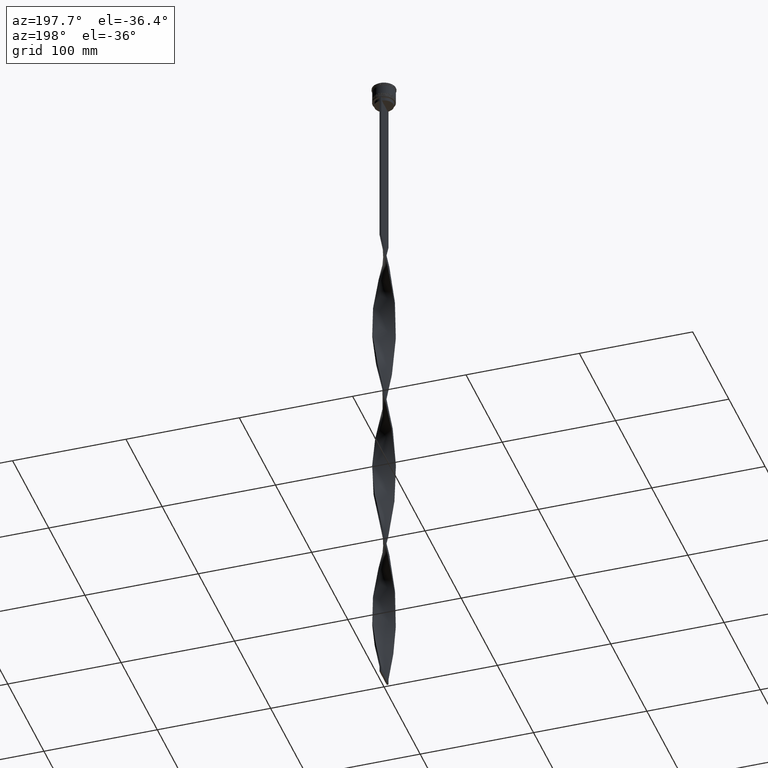
[diagram: clean part render]
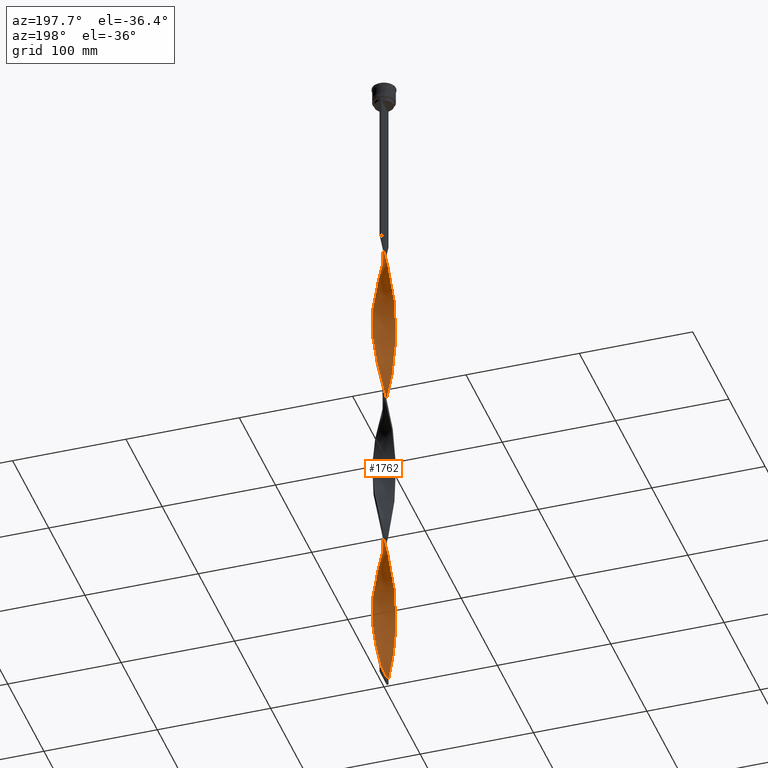
[diagram: same view with one face highlighted and labeled with its STEP entity id]
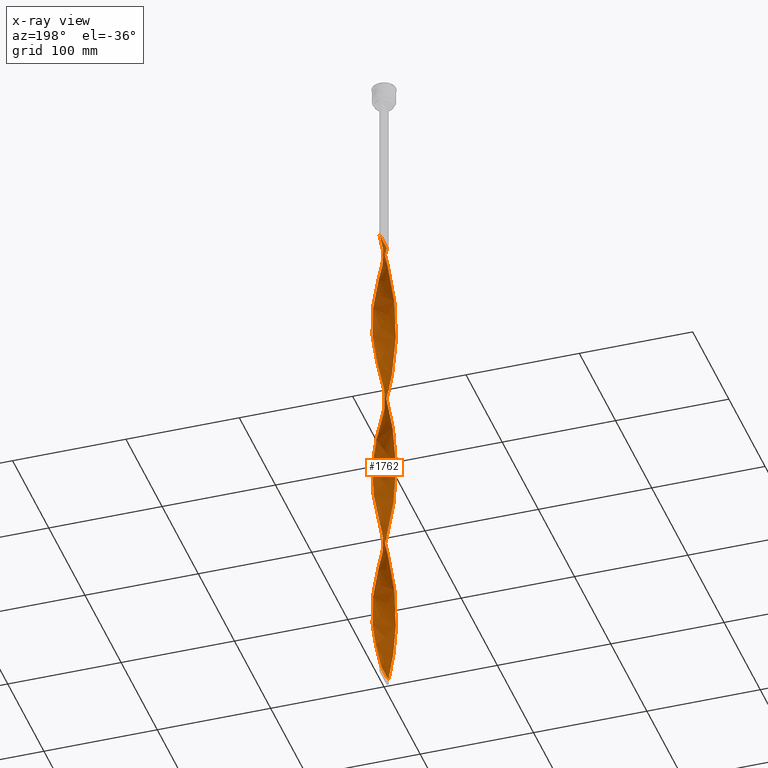
[diagram: x-ray of the same camera — body ghosted, the highlighted face saturated]
A machine part, auxiliary view. The second image highlights one B-rep face of the part: STEP entity #1762.
The next image is the same camera in x-ray: the body ghosted, the highlighted face saturated — about 0% of this face is hidden behind the body in this view.
In plain terms, the highlighted face is a freeform B-spline surface patch.
Its self-contained STEP definition (entity closure, byte-faithful):
#6 = CARTESIAN_POINT ( 'NONE',  ( 7.172695297828685312, -7.038959666430928408, -493.1180555555555429 ) ) ;
#14 = CARTESIAN_POINT ( 'NONE',  ( -6.042515785520205185, 8.030100497682090221, -493.1180555555555998 ) ) ;
#34 = CARTESIAN_POINT ( 'NONE',  ( 9.525807899386689925, -3.133924674267435151, -515.0416666666666288 ) ) ;
#42 = CARTESIAN_POINT ( 'NONE',  ( -2.048845568230871717, 9.816553969573071470, -314.5972222222221717 ) ) ;
#54 = CARTESIAN_POINT ( 'NONE',  ( -3.758279110105984699, 9.320399624033077757, -179.9236111111110574 ) ) ;
#58 = CARTESIAN_POINT ( 'NONE',  ( 9.320399624033083086, -3.758279110105990473, -511.9097222222220580 ) ) ;
#65 = CARTESIAN_POINT ( 'NONE',  ( -9.035254037844390851, 4.350480947161678102, -358.4444444444444571 ) ) ;
#80 = CARTESIAN_POINT ( 'NONE',  ( 2.509570238428873168, -9.731216174740291436, -323.9930555555555998 ) ) ;
#91 = CARTESIAN_POINT ( 'NONE',  ( 7.601397897755390431, -6.540737725975569461, -195.5833333333333144 ) ) ;
#100 = CARTESIAN_POINT ( 'NONE',  ( -7.476962331155810659, 6.682629295305631878, -201.8472222222222001 ) ) ;
#108 = CARTESIAN_POINT ( 'NONE',  ( -2.048845568230877934, -9.816553969573064364, -302.0694444444444002 ) ) ;
#115 = CARTESIAN_POINT ( 'NONE',  ( 8.390104474668897083, -5.492599284868783904, -201.8472222222222001 ) ) ;
#120 = CARTESIAN_POINT ( 'NONE',  ( -2.509570238428877609, 9.731216174740289659, -173.6597222222221717 ) ) ;
#128 = CARTESIAN_POINT ( 'NONE',  ( -9.975528918694857694, -1.217921924187930216, -242.5624999999999432 ) ) ;
#137 = CARTESIAN_POINT ( 'NONE',  ( 8.030100497682093774, -6.042515785520210514, -198.7152777777777430 ) ) ;
#146 = CARTESIAN_POINT ( 'NONE',  ( -9.950842402888570248, 1.405434628152384180, -230.0347222222222001 ) ) ;
#158 = CARTESIAN_POINT ( 'NONE',  ( -10.04915759711143508, -0.09456537184761194814, -380.3680555555554861 ) ) ;
#165 = CARTESIAN_POINT ( 'NONE',  ( 3.758279110105982923, -9.320399624033077757, -330.2569444444443434 ) ) ;
#176 = CARTESIAN_POINT ( 'NONE',  ( -8.655543079808072804, 5.106474812894075122, -511.9097222222220580 ) ) ;
#185 = CARTESIAN_POINT ( 'NONE',  ( 8.285254037844390851, 5.649519052838329891, -558.8888888888889142 ) ) ;
#188 = CARTESIAN_POINT ( 'NONE',  ( 1.217921924187929994, -9.975528918694857694, -317.7291666666665151 ) ) ;
#194 = CARTESIAN_POINT ( 'NONE',  ( 8.285254037844381969, -5.649519052838333444, -358.4444444444444571 ) ) ;
#201 = CARTESIAN_POINT ( 'NONE',  ( 9.682265536257567362, 2.692256508309363472, -242.5624999999999432 ) ) ;
#203 = CARTESIAN_POINT ( 'NONE',  ( -9.682265536257569138, -2.692256508309357699, -392.8958333333332575 ) ) ;
#208 = CARTESIAN_POINT ( 'NONE',  ( 9.682265536257556704, -2.692256508309369245, -374.1041666666665719 ) ) ;
#214 = CARTESIAN_POINT ( 'NONE',  ( 4.350480947161667444, -9.035254037844387298, -333.3888888888888573 ) ) ;
#221 = CARTESIAN_POINT ( 'NONE',  ( 10.01234325790314905, -0.5616782761701598625, -226.9027777777777715 ) ) ;
#222 = CARTESIAN_POINT ( 'NONE',  ( 0.09456537184761140691, -10.04915759711143508, -455.5347222222221149 ) ) ;
#227 = CARTESIAN_POINT ( 'NONE',  ( 0.5616782761701549775, -10.01234325790314195, -314.5972222222221717 ) ) ;
#237 = CARTESIAN_POINT ( 'NONE',  ( 6.192563292782591766, 7.914964995880690246, -430.4791666666666288 ) ) ;
#248 = CARTESIAN_POINT ( 'NONE',  ( 9.465143979063798341, 3.312634820742009101, -245.6944444444444287 ) ) ;
#249 = CARTESIAN_POINT ( 'NONE',  ( -9.853372546717576341, 1.863746081308415237, -370.9722222222222285 ) ) ;
#255 = CARTESIAN_POINT ( 'NONE',  ( -9.465143979063789459, 3.312634820742010433, -220.6388888888888857 ) ) ;
#261 = CARTESIAN_POINT ( 'NONE',  ( 7.172695297828685312, 7.038959666430918638, -424.2152777777777146 ) ) ;
#270 = CARTESIAN_POINT ( 'NONE',  ( -3.312634820742005992, 9.465143979063800117, -320.8611111111110858 ) ) ;
#277 = CARTESIAN_POINT ( 'NONE',  ( -8.285254037844383745, 5.649519052838329891, -508.7777777777777715 ) ) ;
#283 = CARTESIAN_POINT ( 'NONE',  ( -9.035254037844387298, -4.350480947161667444, -558.8888888888889142 ) ) ;
#292 = CARTESIAN_POINT ( 'NONE',  ( -6.682629295305632766, 7.476962331155817765, -339.6527777777777715 ) ) ;
#298 = CARTESIAN_POINT ( 'NONE',  ( -8.655543079808074580, 5.106474812894075122, -511.9097222222220580 ) ) ;
#314 = CARTESIAN_POINT ( 'NONE',  ( -4.942682784217367065, -8.750108451655693287, -430.4791666666666288 ) ) ;
#315 = CARTESIAN_POINT ( 'NONE',  ( 2.509570238428882050, 9.731216174740294989, -593.3402777777778283 ) ) ;
#323 = CARTESIAN_POINT ( 'NONE',  ( 8.030100497682091998, 6.042515785520198968, -417.9513888888888005 ) ) ;
#326 = CARTESIAN_POINT ( 'NONE',  ( -9.975528918694857694, -1.217921924187930216, -543.2291666666665151 ) ) ;
#332 = CARTESIAN_POINT ( 'NONE',  ( 3.758279110105993137, 9.320399624033081309, -587.0763888888888005 ) ) ;
#337 = CARTESIAN_POINT ( 'NONE',  ( -9.975528918694857694, -1.217921924187930438, -543.2291666666665151 ) ) ;
#354 = CARTESIAN_POINT ( 'NONE',  ( -2.509570238428883382, -9.731216174740294989, -443.0069444444444002 ) ) ;
#358 = CARTESIAN_POINT ( 'NONE',  ( -4.942682784217354630, 8.750108451655691510, -486.8541666666665719 ) ) ;
#381 = CARTESIAN_POINT ( 'NONE',  ( 6.192563292782588213, -7.914964995880702681, -486.8541666666665719 ) ) ;
#387 = CARTESIAN_POINT ( 'NONE',  ( 5.649519052838331667, -8.285254037844390851, -183.0555555555555145 ) ) ;
#409 = CARTESIAN_POINT ( 'NONE',  ( -6.540737725975570349, -7.601397897755387767, -421.0833333333333144 ) ) ;
#417 = CARTESIAN_POINT ( 'NONE',  ( 3.758279110105993137, 9.320399624033081309, -286.4097222222221717 ) ) ;
#430 = CARTESIAN_POINT ( 'NONE',  ( -2.692256508309368801, -9.682265536257558480, -298.9374999999999432 ) ) ;
#439 = CARTESIAN_POINT ( 'NONE',  ( 9.731216174740294989, -2.509570238428881606, -217.5069444444443718 ) ) ;
#445 = CARTESIAN_POINT ( 'NONE',  ( -5.492599284868777687, 8.390104474668893531, -189.3194444444444287 ) ) ;
#452 = CARTESIAN_POINT ( 'NONE',  ( -0.5616782761701574200, 10.01234325790314195, -164.2638888888888857 ) ) ;
#464 = CARTESIAN_POINT ( 'NONE',  ( 9.975528918694866576, -1.217921924187935545, -223.7708333333332575 ) ) ;
#481 = CARTESIAN_POINT ( 'NONE',  ( -7.172695297828681760, -7.038959666430921303, -273.8819444444443434 ) ) ;
#490 = CARTESIAN_POINT ( 'NONE',  ( 8.285254037844390851, 5.649519052838329891, -258.2222222222221717 ) ) ;
#500 = CARTESIAN_POINT ( 'NONE',  ( -3.312634820742010877, -9.465143979063789459, -295.8055555555555429 ) ) ;
#508 = CARTESIAN_POINT ( 'NONE',  ( 10.00000000000000533, 0.7499999999999994449, -533.8333333333333712 ) ) ;
#511 = CARTESIAN_POINT ( 'NONE',  ( -7.038959666430922191, 7.172695297828680872, -198.7152777777777430 ) ) ;
#520 = CARTESIAN_POINT ( 'NONE',  ( -6.540737725975564132, 7.601397897755385102, -496.2499999999999432 ) ) ;
#531 = CARTESIAN_POINT ( 'NONE',  ( 9.248022421870031096, 3.933013133174652953, -549.4930555555553156 ) ) ;
#537 = CARTESIAN_POINT ( 'NONE',  ( 9.999999999999998224, -0.7500000000000019984, -383.4999999999999432 ) ) ;
#548 = CARTESIAN_POINT ( 'NONE',  ( 10.01234325790314195, 0.5616782761701543114, -389.7638888888889142 ) ) ;
#557 = CARTESIAN_POINT ( 'NONE',  ( -8.030100497682093774, 6.042515785520210514, -349.0486111111110858 ) ) ;
#558 = CARTESIAN_POINT ( 'NONE',  ( -7.476962331155820429, -6.682629295305629213, -414.8194444444444002 ) ) ;
#563 = CARTESIAN_POINT ( 'NONE',  ( 4.942682784217351966, -8.750108451655693287, -336.5208333333332575 ) ) ;
#564 =( BOUNDED_CURVE ( )  B_SPLINE_CURVE ( 2, ( #3999, #3250, #1154, #851, #2563, #1917, #2971, #4389, #807, #2628, #4045, #873, #2282, #3343, #4429, #3052, #1612, #593, #2672, #2023, #1660, #3405, #221, #3073, #1269, #2716, #937, #201, #248, #3363, #2390, #4472, #919, #4455, #3430, #4124, #1310, #1682, #4493, #3738, #1292, #1329, #3806, #4106, #2346, #957, #3720, #2738, #2044, #2327, #2303, #2365, #270, #2696, #4151, #3755, #4520, #576, #292, #1997, #3010, #557, #1962, #3781, #4175, #4086, #983, #1979, #2762, #620, #640, #3452, #1703, #3096, #3382, #1356, #1633, #3030, #3824, #755, #2477, #3898, #3221, #3517, #409, #3120, #1767, #314, #3870, #1375, #727, #354, #1726, #4238, #3545, #2134, #3921, #660, #2162, #3574, #1822, #1096, #3167, #4194, #3143, #381, #2826, #6, #1797, #3198, #2428, #4562, #683, #58, #34, #1470, #1447, #2779, #4541, #2798, #1423, #1004, #1070, #2848, #1395, #4263, #2456, #2872, #1020, #2409, #4214, #3844, #3470, #2063, #2089, #3497, #2111, #332, #1745, #1045, #707, #2503, #1150, #1873, #3974 ),
 .UNSPECIFIED., .F., .T. ) 
 B_SPLINE_CURVE_WITH_KNOTS ( ( 3, 2, 2, 2, 2, 2, 2, 2, 2, 2, 2, 2, 2, 2, 2, 2, 2, 2, 2, 2, 2, 2, 2, 2, 2, 2, 2, 2, 2, 2, 2, 2, 2, 2, 2, 2, 2, 2, 2, 2, 2, 2, 2, 2, 2, 2, 2, 2, 2, 2, 2, 2, 2, 2, 2, 2, 2, 2, 2, 2, 2, 2, 2, 2, 2, 2, 2, 2, 2, 2, 2, 2, 3 ),
 ( 0.000000000000000000, 0.01041666666666666609, 0.02083333333333333218, 0.03125000000000000000, 0.04166666666666666435, 0.05208333333333333565, 0.06250000000000000000, 0.07291666666666667129, 0.08333333333333332871, 0.09375000000000000000, 0.1041666666666666713, 0.1145833333333333287, 0.1250000000000000000, 0.1354166666666666574, 0.1458333333333333426, 0.1562500000000000000, 0.1666666666666666574, 0.1770833333333333426, 0.1875000000000000000, 0.1979166666666666574, 0.2083333333333333426, 0.2187500000000000000, 0.2291666666666666574, 0.2395833333333333426, 0.2500000000000000000, 0.2604166666666666852, 0.2708333333333333148, 0.2812500000000000000, 0.2916666666666666852, 0.3020833333333333148, 0.3125000000000000000, 0.3229166666666666852, 0.3333333333333333148, 0.3437500000000000000, 0.3541666666666666852, 0.3645833333333333148, 0.3750000000000000000, 0.3854166666666666852, 0.3958333333333333148, 0.4062500000000000000, 0.4166666666666666852, 0.4270833333333333148, 0.4375000000000000000, 0.4479166666666666852, 0.4583333333333333148, 0.4687500000000000000, 0.4791666666666666852, 0.4895833333333333148, 0.5000000000000000000, 0.5104166666666666297, 0.5208333333333333703, 0.5312500000000000000, 0.5416666666666666297, 0.5520833333333333703, 0.5625000000000000000, 0.5729166666666666297, 0.5833333333333333703, 0.5937500000000000000, 0.6041666666666666297, 0.6145833333333333703, 0.6250000000000000000, 0.6354166666666666297, 0.6458333333333333703, 0.6562500000000000000, 0.6666666666666666297, 0.6770833333333333703, 0.6875000000000000000, 0.6979166666666666297, 0.7083333333333333703, 0.7187500000000000000, 0.7291666666666666297, 0.7395833333333333703, 0.7500000000000000000 ),
 .UNSPECIFIED. ) 
 CURVE ( )  GEOMETRIC_REPRESENTATION_ITEM ( )  RATIONAL_B_SPLINE_CURVE ( ( 1.000000000000000000, 0.9978589232386034791, 1.000000000000000000, 0.9978589232386034791, 1.000000000000000000, 0.9978589232386034791, 1.000000000000000000, 0.9978589232386034791, 1.000000000000000000, 0.9978589232386034791, 1.000000000000000000, 0.9978589232386034791, 1.000000000000000000, 0.9978589232386034791, 1.000000000000000000, 0.9978589232386034791, 1.000000000000000000, 0.9978589232386034791, 1.000000000000000000, 0.9978589232386034791, 1.000000000000000000, 0.9978589232386034791, 1.000000000000000000, 0.9978589232386034791, 1.000000000000000000, 0.9978589232386034791, 1.000000000000000000, 0.9978589232386034791, 1.000000000000000000, 0.9978589232386034791, 1.000000000000000000, 0.9978589232386034791, 1.000000000000000000, 0.9978589232386034791, 1.000000000000000000, 0.9978589232386034791, 1.000000000000000000, 0.9978589232386034791, 1.000000000000000000, 0.9978589232386034791, 1.000000000000000000, 0.9978589232386034791, 1.000000000000000000, 0.9978589232386034791, 1.000000000000000000, 0.9978589232386034791, 1.000000000000000000, 0.9978589232386034791, 1.000000000000000000, 0.9978589232386034791, 1.000000000000000000, 0.9978589232386034791, 1.000000000000000000, 0.9978589232386034791, 1.000000000000000000, 0.9978589232386034791, 1.000000000000000000, 0.9978589232386034791, 1.000000000000000000, 0.9978589232386034791, 1.000000000000000000, 0.9978589232386034791, 1.000000000000000000, 0.9978589232386034791, 1.000000000000000000, 0.9978589232386034791, 1.000000000000000000, 0.9978589232386034791, 1.000000000000000000, 0.9978589232386034791, 1.000000000000000000, 0.9978589232386034791, 1.000000000000000000, 0.9978589232386034791, 1.000000000000000000, 0.9978589232386034791, 1.000000000000000000, 0.9978589232386034791, 1.000000000000000000, 0.9978589232386034791, 1.000000000000000000, 0.9978589232386034791, 1.000000000000000000, 0.9978589232386034791, 1.000000000000000000, 0.9978589232386034791, 1.000000000000000000, 0.9978589232386034791, 1.000000000000000000, 0.9978589232386034791, 1.000000000000000000, 0.9978589232386034791, 1.000000000000000000, 0.9978589232386034791, 1.000000000000000000, 0.9978589232386034791, 1.000000000000000000, 0.9978589232386034791, 1.000000000000000000, 0.9978589232386034791, 1.000000000000000000, 0.9978589232386034791, 1.000000000000000000, 0.9978589232386034791, 1.000000000000000000, 0.9978589232386034791, 1.000000000000000000, 0.9978589232386034791, 1.000000000000000000, 0.9978589232386034791, 1.000000000000000000, 0.9978589232386034791, 1.000000000000000000, 0.9978589232386034791, 1.000000000000000000, 0.9978589232386034791, 1.000000000000000000, 0.9978589232386034791, 1.000000000000000000, 0.9978589232386034791, 1.000000000000000000, 0.9978589232386034791, 1.000000000000000000, 0.9978589232386034791, 1.000000000000000000, 0.9978589232386034791, 1.000000000000000000, 0.9978589232386034791, 1.000000000000000000, 0.9978589232386034791, 1.000000000000000000, 0.9978589232386034791, 1.000000000000000000, 0.9978589232386034791, 1.000000000000000000, 0.9978589232386034791, 1.000000000000000000, 0.9978589232386034791, 1.000000000000000000, 0.9978589232386034791, 1.000000000000000000, 0.9978589232386034791, 1.000000000000000000, 0.9978589232386034791, 1.000000000000000000 ) ) 
 REPRESENTATION_ITEM ( '' )  );
#569 = CARTESIAN_POINT ( 'NONE',  ( -4.350480947161669221, 9.035254037844387298, -483.7222222222222285 ) ) ;
#576 = CARTESIAN_POINT ( 'NONE',  ( -6.192563292782586437, 7.914964995880706233, -336.5208333333332575 ) ) ;
#577 = CARTESIAN_POINT ( 'NONE',  ( -9.816553969573071470, -2.048845568230871717, -389.7638888888889142 ) ) ;
#580 = CARTESIAN_POINT ( 'NONE',  ( -6.192563292782588213, -7.914964995880694687, -280.1458333333333144 ) ) ;
#585 = CARTESIAN_POINT ( 'NONE',  ( 7.476962331155807995, -6.682629295305633654, -352.1805555555554861 ) ) ;
#593 = CARTESIAN_POINT ( 'NONE',  ( 9.320399624033083086, -3.758279110105990473, -211.2430555555555145 ) ) ;
#594 = CARTESIAN_POINT ( 'NONE',  ( -7.038959666430931073, -7.172695297828680872, -417.9513888888888005 ) ) ;
#600 = CARTESIAN_POINT ( 'NONE',  ( 9.816553969573060812, -2.048845568230882375, -377.2361111111110858 ) ) ;
#608 = CARTESIAN_POINT ( 'NONE',  ( 9.731216174740289659, 2.509570238428876721, -399.1597222222221149 ) ) ;
#620 = CARTESIAN_POINT ( 'NONE',  ( -9.975528918694863023, 1.217921924187938654, -374.1041666666666288 ) ) ;
#626 = CARTESIAN_POINT ( 'NONE',  ( 9.525807899386686373, 3.133924674267425825, -402.2916666666666856 ) ) ;
#640 = CARTESIAN_POINT ( 'NONE',  ( -10.01234325790314905, 0.5616782761701678561, -377.2361111111110858 ) ) ;
#647 = CARTESIAN_POINT ( 'NONE',  ( -5.649519052838331667, -8.285254037844381969, -583.9444444444443434 ) ) ;
#660 = CARTESIAN_POINT ( 'NONE',  ( 1.405434628152382404, -9.950842402888575577, -461.7986111111110290 ) ) ;
#665 = CARTESIAN_POINT ( 'NONE',  ( -9.816553969573064364, 2.048845568230874825, -527.5694444444444571 ) ) ;
#683 = CARTESIAN_POINT ( 'NONE',  ( 9.035254037844390851, -4.350480947161673662, -508.7777777777777715 ) ) ;
#685 = CARTESIAN_POINT ( 'NONE',  ( 4.350480947161677214, 9.035254037844390851, -583.9444444444443434 ) ) ;
#691 = CARTESIAN_POINT ( 'NONE',  ( -6.540737725975564132, 7.601397897755385102, -496.2499999999999432 ) ) ;
#707 = CARTESIAN_POINT ( 'NONE',  ( 1.863746081308410352, 9.853372546717578118, -596.4722222222222854 ) ) ;
#712 = CARTESIAN_POINT ( 'NONE',  ( -2.509570238428877609, 9.731216174740289659, -474.3263888888889142 ) ) ;
#727 = CARTESIAN_POINT ( 'NONE',  ( -3.133924674267440924, -9.525807899386688149, -439.8749999999999432 ) ) ;
#734 = CARTESIAN_POINT ( 'NONE',  ( -6.192563292782588213, -7.914964995880694687, -580.8124999999998863 ) ) ;
#750 = CARTESIAN_POINT ( 'NONE',  ( -9.320399624033077757, -3.758279110105983811, -255.0902777777777146 ) ) ;
#755 = CARTESIAN_POINT ( 'NONE',  ( -8.655543079808081686, -5.106474812894073345, -405.4236111111110858 ) ) ;
#764 = CARTESIAN_POINT ( 'NONE',  ( -6.192563292782586437, 7.914964995880707122, -336.5208333333332575 ) ) ;
#770 = CARTESIAN_POINT ( 'NONE',  ( -8.285254037844383745, 5.649519052838329891, -208.1111111111110858 ) ) ;
#778 = CARTESIAN_POINT ( 'NONE',  ( -5.649519052838331667, -8.285254037844381969, -283.2777777777777146 ) ) ;
#788 = CARTESIAN_POINT ( 'NONE',  ( 6.540737725975569461, 7.601397897755389543, -270.7500000000000000 ) ) ;
#798 = CARTESIAN_POINT ( 'NONE',  ( -4.519743973034363371, -8.951782750839049285, -289.5416666666666288 ) ) ;
#807 = CARTESIAN_POINT ( 'NONE',  ( 5.649519052838331667, -8.285254037844390851, -183.0555555555555145 ) ) ;
#808 = CARTESIAN_POINT ( 'NONE',  ( 3.933013133174654730, -9.248022421870031096, -173.6597222222221717 ) ) ;
#818 = CARTESIAN_POINT ( 'NONE',  ( -4.942682784217354630, 8.750108451655691510, -186.1874999999999716 ) ) ;
#829 = CARTESIAN_POINT ( 'NONE',  ( 2.509570238428882050, 9.731216174740294989, -292.6736111111110290 ) ) ;
#845 = CARTESIAN_POINT ( 'NONE',  ( -9.816553969573064364, 2.048845568230875269, -226.9027777777777715 ) ) ;
#851 = CARTESIAN_POINT ( 'NONE',  ( 2.692256508309366581, -9.682265536257565586, -167.3958333333332860 ) ) ;
#852 = CARTESIAN_POINT ( 'NONE',  ( -5.492599284868786569, -8.390104474668895307, -427.3472222222222285 ) ) ;
#858 = CARTESIAN_POINT ( 'NONE',  ( 0.7500000000000001110, 9.999999999999998224, -157.9999999999999716 ) ) ;
#865 = CARTESIAN_POINT ( 'NONE',  ( 7.038959666430921303, -7.172695297828681760, -349.0486111111110858 ) ) ;
#873 = CARTESIAN_POINT ( 'NONE',  ( 7.172695297828685312, -7.038959666430928408, -192.4513888888888289 ) ) ;
#874 = CARTESIAN_POINT ( 'NONE',  ( 6.192563292782588213, -7.914964995880703569, -486.8541666666665719 ) ) ;
#877 = CARTESIAN_POINT ( 'NONE',  ( -7.172695297828680872, -7.038959666430922191, -273.8819444444444002 ) ) ;
#886 = CARTESIAN_POINT ( 'NONE',  ( -9.465143979063789459, 3.312634820742010433, -521.3055555555554292 ) ) ;
#897 = CARTESIAN_POINT ( 'NONE',  ( 3.312634820742009989, -9.465143979063798341, -471.1944444444444002 ) ) ;
#904 = CARTESIAN_POINT ( 'NONE',  ( -2.048845568230877934, -9.816553969573064364, -302.0694444444444002 ) ) ;
#912 = CARTESIAN_POINT ( 'NONE',  ( 2.048845568230883263, 9.816553969573060812, -452.4027777777777715 ) ) ;
#919 = CARTESIAN_POINT ( 'NONE',  ( 8.285254037844390851, 5.649519052838329891, -258.2222222222221717 ) ) ;
#920 = CARTESIAN_POINT ( 'NONE',  ( -8.655543079808083462, -5.106474812894073345, -405.4236111111110858 ) ) ;
#924 = CARTESIAN_POINT ( 'NONE',  ( -10.01234325790314195, -0.5616782761701554216, -239.4305555555555429 ) ) ;
#929 = CARTESIAN_POINT ( 'NONE',  ( -1.863746081308405689, 9.853372546717572789, -471.1944444444444002 ) ) ;
#937 = CARTESIAN_POINT ( 'NONE',  ( 9.816553969573071470, 2.048845568230872605, -239.4305555555555429 ) ) ;
#938 = CARTESIAN_POINT ( 'NONE',  ( 2.048845568230874381, -9.816553969573071470, -464.9305555555555429 ) ) ;
#942 = CARTESIAN_POINT ( 'NONE',  ( -9.853372546717572789, -1.863746081308404801, -245.6944444444444287 ) ) ;
#947 = CARTESIAN_POINT ( 'NONE',  ( 9.320399624033077757, 3.758279110105982923, -405.4236111111110858 ) ) ;
#957 = CARTESIAN_POINT ( 'NONE',  ( 1.217921924187938210, 9.975528918694864799, -298.9374999999999432 ) ) ;
#965 = CARTESIAN_POINT ( 'NONE',  ( -9.035254037844387298, -4.350480947161667444, -258.2222222222221717 ) ) ;
#983 = CARTESIAN_POINT ( 'NONE',  ( -9.525807899386688149, 3.133924674267440036, -364.7083333333333144 ) ) ;
#990 = CARTESIAN_POINT ( 'NONE',  ( -8.750108451655693287, -4.942682784217351966, -562.0208333333331439 ) ) ;
#996 = CARTESIAN_POINT ( 'NONE',  ( -9.950842402888570248, 1.405434628152384180, -530.7013888888888005 ) ) ;
#1004 = CARTESIAN_POINT ( 'NONE',  ( 9.950842402888575577, 1.405434628152381071, -536.9652777777778283 ) ) ;
#1005 = CARTESIAN_POINT ( 'NONE',  ( 0.5616782761701627491, 10.01234325790314905, -602.7361111111110858 ) ) ;
#1010 = CARTESIAN_POINT ( 'NONE',  ( 6.192563292782591766, 7.914964995880691134, -430.4791666666666288 ) ) ;
#1020 = CARTESIAN_POINT ( 'NONE',  ( 8.285254037844390851, 5.649519052838329891, -558.8888888888889142 ) ) ;
#1025 = CARTESIAN_POINT ( 'NONE',  ( 4.519743973034367812, 8.951782750839045733, -439.8749999999999432 ) ) ;
#1034 = CARTESIAN_POINT ( 'NONE',  ( -9.853372546717572789, -1.863746081308404801, -546.3611111111110858 ) ) ;
#1045 = CARTESIAN_POINT ( 'NONE',  ( 2.509570238428882050, 9.731216174740294989, -593.3402777777777146 ) ) ;
#1052 = CARTESIAN_POINT ( 'NONE',  ( -10.04915759711142798, 0.09456537184761942827, -536.9652777777778283 ) ) ;
#1059 = CARTESIAN_POINT ( 'NONE',  ( -4.519743973034363371, -8.951782750839049285, -590.2083333333333712 ) ) ;
#1070 = CARTESIAN_POINT ( 'NONE',  ( 9.816553969573071470, 2.048845568230872605, -540.0972222222221717 ) ) ;
#1074 = ORIENTED_EDGE ( 'NONE', *, *, #3041, .T. ) ;
#1077 = CARTESIAN_POINT ( 'NONE',  ( -7.172695297828680872, -7.038959666430922191, -574.5486111111111995 ) ) ;
#1092 = CARTESIAN_POINT ( 'NONE',  ( -9.465143979063789459, 3.312634820742010433, -220.6388888888888857 ) ) ;
#1096 = CARTESIAN_POINT ( 'NONE',  ( 3.933013133174654286, -9.248022421870029319, -474.3263888888889142 ) ) ;
#1102 = CARTESIAN_POINT ( 'NONE',  ( -0.09456537184761258652, 10.04915759711143508, -305.2013888888888573 ) ) ;
#1119 = CARTESIAN_POINT ( 'NONE',  ( -8.030100497682091998, -6.042515785520199856, -267.6180555555554861 ) ) ;
#1132 = CARTESIAN_POINT ( 'NONE',  ( -4.519743973034358930, 8.951782750839058167, -327.1250000000000000 ) ) ;
#1138 = CARTESIAN_POINT ( 'NONE',  ( -3.758279110105984699, 9.320399624033077757, -179.9236111111110574 ) ) ;
#1147 = CARTESIAN_POINT ( 'NONE',  ( -2.509570238428877609, 9.731216174740289659, -173.6597222222221717 ) ) ;
#1150 = CARTESIAN_POINT ( 'NONE',  ( 0.5616782761701627491, 10.01234325790314905, -602.7361111111110858 ) ) ;
#1154 = CARTESIAN_POINT ( 'NONE',  ( 2.048845568230874381, -9.816553969573071470, -164.2638888888888857 ) ) ;
#1155 = CARTESIAN_POINT ( 'NONE',  ( -2.692256508309363028, 9.682265536257567362, -317.7291666666665151 ) ) ;
#1168 = CARTESIAN_POINT ( 'NONE',  ( 0.09456537184761812376, 10.04915759711142798, -161.1319444444444002 ) ) ;
#1177 = CARTESIAN_POINT ( 'NONE',  ( 10.00000000000000533, 0.7499999999999994449, -233.1666666666666288 ) ) ;
#1189 = VERTEX_POINT ( 'NONE', #2234 ) ;
#1202 = CARTESIAN_POINT ( 'NONE',  ( 2.048845568230874381, -9.816553969573071470, -164.2638888888888857 ) ) ;
#1218 = CARTESIAN_POINT ( 'NONE',  ( 8.390104474668895307, 5.492599284868770582, -414.8194444444444002 ) ) ;
#1228 = CARTESIAN_POINT ( 'NONE',  ( -9.950842402888580907, -1.405434628152375520, -386.6319444444444571 ) ) ;
#1231 = CARTESIAN_POINT ( 'NONE',  ( -0.7499999999999988898, 10.00000000000000533, -609.0000000000000000 ) ) ;
#1233 = CARTESIAN_POINT ( 'NONE',  ( -9.248022421870020437, 3.933013133174653841, -217.5069444444443718 ) ) ;
#1242 = CARTESIAN_POINT ( 'NONE',  ( 8.750108451655693287, 4.942682784217351077, -411.6875000000000000 ) ) ;
#1250 = CARTESIAN_POINT ( 'NONE',  ( 7.914964995880705345, 6.192563292782586437, -562.0208333333331439 ) ) ;
#1253 = CARTESIAN_POINT ( 'NONE',  ( -0.09456537184761996950, -10.04915759711142798, -311.4652777777776578 ) ) ;
#1260 = CARTESIAN_POINT ( 'NONE',  ( 3.312634820742016650, 9.465143979063789459, -446.1388888888888573 ) ) ;
#1263 = B_SPLINE_CURVE_WITH_KNOTS ( 'NONE', 3,
 ( #3395, #2687, #3771, #2384 ),
 .UNSPECIFIED., .F., .F.,
 ( 4, 4 ),
 ( 0.000000000000000000, 1.000000000000000000 ),
 .UNSPECIFIED. ) ;
#1269 = CARTESIAN_POINT ( 'NONE',  ( 10.00000000000000533, 0.7499999999999994449, -233.1666666666666288 ) ) ;
#1270 = CARTESIAN_POINT ( 'NONE',  ( -1.863746081308415681, -9.853372546717576341, -446.1388888888888573 ) ) ;
#1275 = CARTESIAN_POINT ( 'NONE',  ( 9.320399624033077757, 3.758279110105982923, -405.4236111111110858 ) ) ;
#1285 = CARTESIAN_POINT ( 'NONE',  ( 2.692256508309369689, 9.682265536257556704, -449.2708333333333144 ) ) ;
#1292 = CARTESIAN_POINT ( 'NONE',  ( 4.350480947161677214, 9.035254037844390851, -283.2777777777777146 ) ) ;
#1294 = CARTESIAN_POINT ( 'NONE',  ( -2.509570238428882938, -9.731216174740294989, -443.0069444444444002 ) ) ;
#1297 = CARTESIAN_POINT ( 'NONE',  ( 7.914964995880691134, -6.192563292782591766, -355.3124999999998863 ) ) ;
#1301 = CARTESIAN_POINT ( 'NONE',  ( -2.509570238428877609, 9.731216174740289659, -474.3263888888889142 ) ) ;
#1310 = CARTESIAN_POINT ( 'NONE',  ( 6.540737725975569461, 7.601397897755389543, -270.7500000000000000 ) ) ;
#1311 = CARTESIAN_POINT ( 'NONE',  ( -1.217921924187939320, -9.975528918694864799, -449.2708333333333712 ) ) ;
#1315 = CARTESIAN_POINT ( 'NONE',  ( 6.540737725975558803, -7.601397897755388655, -345.9166666666666288 ) ) ;
#1329 = CARTESIAN_POINT ( 'NONE',  ( 3.758279110105993137, 9.320399624033081309, -286.4097222222221717 ) ) ;
#1337 = CARTESIAN_POINT ( 'NONE',  ( -9.999999999999998224, 0.7500000000000007772, -533.8333333333333712 ) ) ;
#1356 = CARTESIAN_POINT ( 'NONE',  ( -9.682265536257569138, -2.692256508309357699, -392.8958333333332575 ) ) ;
#1360 = VERTEX_POINT ( 'NONE', #3800 ) ;
#1361 = CARTESIAN_POINT ( 'NONE',  ( 3.312634820742016650, 9.465143979063789459, -446.1388888888888573 ) ) ;
#1375 = CARTESIAN_POINT ( 'NONE',  ( -3.758279110105998466, -9.320399624033079533, -436.7430555555554861 ) ) ;
#1381 = CARTESIAN_POINT ( 'NONE',  ( -3.933013133174654730, -9.248022421870020437, -593.3402777777778283 ) ) ;
#1395 = CARTESIAN_POINT ( 'NONE',  ( 9.465143979063798341, 3.312634820742009101, -546.3611111111110858 ) ) ;
#1400 = CARTESIAN_POINT ( 'NONE',  ( 7.172695297828685312, 7.038959666430918638, -424.2152777777777146 ) ) ;
#1423 = CARTESIAN_POINT ( 'NONE',  ( 10.00000000000000533, 0.7499999999999994449, -533.8333333333333712 ) ) ;
#1430 = CARTESIAN_POINT ( 'NONE',  ( -9.682265536257558480, 2.692256508309365692, -524.4375000000000000 ) ) ;
#1447 = CARTESIAN_POINT ( 'NONE',  ( 9.853372546717578118, -1.863746081308409464, -521.3055555555554292 ) ) ;
#1453 = CARTESIAN_POINT ( 'NONE',  ( -3.933013133174650289, 9.248022421870031096, -323.9930555555555429 ) ) ;
#1467 = CARTESIAN_POINT ( 'NONE',  ( -10.01234325790314195, -0.5616782761701553106, -239.4305555555555429 ) ) ;
#1470 = CARTESIAN_POINT ( 'NONE',  ( 9.731216174740294989, -2.509570238428881606, -518.1736111111110858 ) ) ;
#1476 = CARTESIAN_POINT ( 'NONE',  ( 9.682265536257567362, 2.692256508309363472, -242.5624999999999147 ) ) ;
#1482 = DIRECTION ( 'NONE',  ( 0.000000000000000000, 1.000000000000000000, 0.000000000000000000 ) ) ;
#1489 = CARTESIAN_POINT ( 'NONE',  ( -9.035254037844387298, -4.350480947161667444, -258.2222222222221717 ) ) ;
#1501 = CARTESIAN_POINT ( 'NONE',  ( 10.04915759711143508, 0.09456537184761544534, -230.0347222222222001 ) ) ;
#1515 = CARTESIAN_POINT ( 'NONE',  ( 1.863746081308401470, -9.853372546717572789, -320.8611111111110858 ) ) ;
#1516 = EDGE_CURVE ( 'NONE', #1189, #2337, #1263, .T. ) ;
#1524 = CARTESIAN_POINT ( 'NONE',  ( -8.030100497682093774, 6.042515785520211402, -349.0486111111110858 ) ) ;
#1537 = CARTESIAN_POINT ( 'NONE',  ( 0.7500000000000002220, 9.999999999999998224, -157.9999999999999716 ) ) ;
#1545 = CARTESIAN_POINT ( 'NONE',  ( 3.133924674267436039, 9.525807899386689925, -289.5416666666666288 ) ) ;
#1556 = CARTESIAN_POINT ( 'NONE',  ( -6.042515785520203409, 8.030100497682090221, -192.4513888888888289 ) ) ;
#1570 = CARTESIAN_POINT ( 'NONE',  ( -9.465143979063800117, -3.312634820742005548, -396.0277777777777715 ) ) ;
#1575 = CARTESIAN_POINT ( 'NONE',  ( -2.692256508309368801, -9.682265536257558480, -298.9374999999999432 ) ) ;
#1584 = CARTESIAN_POINT ( 'NONE',  ( 9.525807899386686373, 3.133924674267425381, -402.2916666666666856 ) ) ;
#1592 = CARTESIAN_POINT ( 'NONE',  ( 10.04915759711143508, 0.09456537184761544534, -530.7013888888888005 ) ) ;
#1598 = CARTESIAN_POINT ( 'NONE',  ( -9.731216174740289659, -2.509570238428876277, -248.8263888888888289 ) ) ;
#1604 = CARTESIAN_POINT ( 'NONE',  ( 8.655543079808072804, -5.106474812894073345, -361.5763888888888005 ) ) ;
#1612 = CARTESIAN_POINT ( 'NONE',  ( 9.035254037844390851, -4.350480947161673662, -208.1111111111110858 ) ) ;
#1613 = CARTESIAN_POINT ( 'NONE',  ( -10.01234325790314905, 0.5616782761701678561, -377.2361111111110858 ) ) ;
#1618 = CARTESIAN_POINT ( 'NONE',  ( -0.7500000000000013323, -9.999999999999998224, -308.3333333333333712 ) ) ;
#1624 = CARTESIAN_POINT ( 'NONE',  ( 4.519743973034367812, 8.951782750839045733, -439.8749999999999432 ) ) ;
#1633 = CARTESIAN_POINT ( 'NONE',  ( -9.465143979063800117, -3.312634820742005548, -396.0277777777777715 ) ) ;
#1634 = CARTESIAN_POINT ( 'NONE',  ( 1.405434628152382404, -9.950842402888577354, -461.7986111111110290 ) ) ;
#1640 = CARTESIAN_POINT ( 'NONE',  ( 10.04915759711142798, -0.09456537184762517367, -386.6319444444444571 ) ) ;
#1652 = CARTESIAN_POINT ( 'NONE',  ( 3.933013133174655174, 9.248022421870020437, -443.0069444444444002 ) ) ;
#1660 = CARTESIAN_POINT ( 'NONE',  ( 9.853372546717578118, -1.863746081308409464, -220.6388888888888857 ) ) ;
#1661 = CARTESIAN_POINT ( 'NONE',  ( -6.540737725975570349, -7.601397897755387767, -421.0833333333333144 ) ) ;
#1665 = CARTESIAN_POINT ( 'NONE',  ( 9.248022421870020437, -3.933013133174654730, -367.8402777777777146 ) ) ;
#1682 = CARTESIAN_POINT ( 'NONE',  ( 6.042515785520209626, 8.030100497682093774, -273.8819444444443434 ) ) ;
#1685 = VERTEX_POINT ( 'NONE', #2953 ) ;
#1688 = CARTESIAN_POINT ( 'NONE',  ( -7.038959666430922191, 7.172695297828680872, -499.3819444444444002 ) ) ;
#1703 = CARTESIAN_POINT ( 'NONE',  ( -10.00000000000000533, -0.7499999999999983347, -383.4999999999999432 ) ) ;
#1704 = CARTESIAN_POINT ( 'NONE',  ( 6.540737725975569461, 7.601397897755389543, -571.4166666666666288 ) ) ;
#1708 = EDGE_LOOP ( 'NONE', ( #3295, #1074, #4061, #3218 ) ) ;
#1710 = CARTESIAN_POINT ( 'NONE',  ( -9.465143979063789459, 3.312634820742010433, -521.3055555555554292 ) ) ;
#1726 = CARTESIAN_POINT ( 'NONE',  ( -1.863746081308415681, -9.853372546717576341, -446.1388888888888573 ) ) ;
#1727 = CARTESIAN_POINT ( 'NONE',  ( 4.942682784217361736, 8.750108451655696840, -580.8124999999998863 ) ) ;
#1732 = CARTESIAN_POINT ( 'NONE',  ( 7.601397897755385991, 6.540737725975562356, -421.0833333333333144 ) ) ;
#1737 = CARTESIAN_POINT ( 'NONE',  ( -3.933013133174654286, -9.248022421870020437, -593.3402777777777146 ) ) ;
#1745 = CARTESIAN_POINT ( 'NONE',  ( 3.133924674267436039, 9.525807899386689925, -590.2083333333333712 ) ) ;
#1750 = CARTESIAN_POINT ( 'NONE',  ( -7.601397897755385102, -6.540737725975563244, -571.4166666666666288 ) ) ;
#1757 = CARTESIAN_POINT ( 'NONE',  ( -8.390104474668893531, -5.492599284868775023, -565.1527777777778283 ) ) ;
#1762 = ADVANCED_FACE ( 'NONE', ( #4029 ), #3528, .T. ) ;
#1767 = CARTESIAN_POINT ( 'NONE',  ( -5.492599284868786569, -8.390104474668895307, -427.3472222222222285 ) ) ;
#1772 = CARTESIAN_POINT ( 'NONE',  ( -5.492599284868777687, 8.390104474668893531, -489.9861111111111427 ) ) ;
#1797 = CARTESIAN_POINT ( 'NONE',  ( 7.601397897755390431, -6.540737725975569461, -496.2499999999999432 ) ) ;
#1805 = CARTESIAN_POINT ( 'NONE',  ( 8.951782750839056391, 4.519743973034362483, -251.9583333333332860 ) ) ;
#1817 = CARTESIAN_POINT ( 'NONE',  ( -3.133924674267432042, 9.525807899386684596, -176.7916666666666572 ) ) ;
#1822 = CARTESIAN_POINT ( 'NONE',  ( 3.312634820742009989, -9.465143979063798341, -471.1944444444444002 ) ) ;
#1830 = CARTESIAN_POINT ( 'NONE',  ( -7.172695297828681760, 7.038959666430931073, -342.7847222222222285 ) ) ;
#1842 = CARTESIAN_POINT ( 'NONE',  ( 0.5616782761701548665, -10.01234325790314195, -314.5972222222221717 ) ) ;
#1852 = CARTESIAN_POINT ( 'NONE',  ( 4.350480947161677214, 9.035254037844390851, -283.2777777777777146 ) ) ;
#1859 = CARTESIAN_POINT ( 'NONE',  ( -6.540737725975564132, 7.601397897755385102, -195.5833333333333144 ) ) ;
#1869 = CARTESIAN_POINT ( 'NONE',  ( -4.350480947161669221, 9.035254037844387298, -183.0555555555555145 ) ) ;
#1873 = CARTESIAN_POINT ( 'NONE',  ( -0.09456537184761260040, 10.04915759711143508, -605.8680555555555429 ) ) ;
#1879 = CARTESIAN_POINT ( 'NONE',  ( 5.492599284868785681, 8.390104474668895307, -277.0138888888889142 ) ) ;
#1891 = CARTESIAN_POINT ( 'NONE',  ( -1.863746081308405689, 9.853372546717572789, -170.5277777777777430 ) ) ;
#1899 = CARTESIAN_POINT ( 'NONE',  ( 9.950842402888577354, 1.405434628152381071, -236.2986111111110574 ) ) ;
#1902 = CARTESIAN_POINT ( 'NONE',  ( 0.09456537184761801274, 10.04915759711142798, -161.1319444444444002 ) ) ;
#1909 = CARTESIAN_POINT ( 'NONE',  ( -6.682629295305633654, -7.476962331155807995, -277.0138888888889142 ) ) ;
#1917 = CARTESIAN_POINT ( 'NONE',  ( 3.933013133174654286, -9.248022421870029319, -173.6597222222221717 ) ) ;
#1918 = CARTESIAN_POINT ( 'NONE',  ( 9.816553969573071470, 2.048845568230872605, -540.0972222222221717 ) ) ;
#1922 = CARTESIAN_POINT ( 'NONE',  ( -7.914964995880694687, 6.192563292782586437, -204.9791666666666288 ) ) ;
#1930 = CARTESIAN_POINT ( 'NONE',  ( -7.476962331155809771, 6.682629295305631878, -502.5138888888889142 ) ) ;
#1940 = CARTESIAN_POINT ( 'NONE',  ( 8.951782750839056391, 4.519743973034362483, -552.6249999999998863 ) ) ;
#1947 = CARTESIAN_POINT ( 'NONE',  ( -7.601397897755385102, -6.540737725975563244, -270.7500000000000000 ) ) ;
#1954 = CARTESIAN_POINT ( 'NONE',  ( 9.035254037844389075, 4.350480947161663003, -408.5555555555555429 ) ) ;
#1962 = CARTESIAN_POINT ( 'NONE',  ( -8.390104474668895307, 5.492599284868785681, -352.1805555555554861 ) ) ;
#1963 = CARTESIAN_POINT ( 'NONE',  ( 9.465143979063798341, 3.312634820742009101, -546.3611111111110858 ) ) ;
#1967 = CARTESIAN_POINT ( 'NONE',  ( -6.682629295305633654, -7.476962331155807995, -277.0138888888889142 ) ) ;
#1972 = CARTESIAN_POINT ( 'NONE',  ( 9.999999999999998224, -0.7500000000000021094, -383.4999999999999432 ) ) ;
#1979 = CARTESIAN_POINT ( 'NONE',  ( -9.731216174740294989, 2.509570238428882494, -367.8402777777777146 ) ) ;
#1981 = CARTESIAN_POINT ( 'NONE',  ( 7.601397897755390431, -6.540737725975569461, -496.2499999999999432 ) ) ;
#1984 = CARTESIAN_POINT ( 'NONE',  ( -10.04915759711142798, 0.09456537184761942827, -236.2986111111110574 ) ) ;
#1989 = CARTESIAN_POINT ( 'NONE',  ( 9.465143979063789459, -3.312634820742016206, -370.9722222222222285 ) ) ;
#1997 = CARTESIAN_POINT ( 'NONE',  ( -7.172695297828681760, 7.038959666430931073, -342.7847222222222285 ) ) ;
#1998 = CARTESIAN_POINT ( 'NONE',  ( 5.649519052838331667, -8.285254037844390851, -483.7222222222222285 ) ) ;
#2005 = CARTESIAN_POINT ( 'NONE',  ( 9.950842402888570248, -1.405434628152387511, -380.3680555555554861 ) ) ;
#2015 = CARTESIAN_POINT ( 'NONE',  ( -5.492599284868777687, 8.390104474668893531, -489.9861111111111427 ) ) ;
#2023 = CARTESIAN_POINT ( 'NONE',  ( 9.731216174740294989, -2.509570238428881606, -217.5069444444443718 ) ) ;
#2030 = CARTESIAN_POINT ( 'NONE',  ( -1.405434628152386844, -9.950842402888570248, -305.2013888888888573 ) ) ;
#2035 = CARTESIAN_POINT ( 'NONE',  ( -6.192563292782588213, -7.914964995880693799, -580.8124999999998863 ) ) ;
#2044 = CARTESIAN_POINT ( 'NONE',  ( -0.7499999999999988898, 10.00000000000000533, -308.3333333333333712 ) ) ;
#2046 = CARTESIAN_POINT ( 'NONE',  ( 3.758279110105993137, 9.320399624033081309, -587.0763888888889142 ) ) ;
#2051 = CARTESIAN_POINT ( 'NONE',  ( -1.405434628152386844, -9.950842402888570248, -605.8680555555556566 ) ) ;
#2054 = CARTESIAN_POINT ( 'NONE',  ( -7.601397897755385102, -6.540737725975563244, -571.4166666666666288 ) ) ;
#2063 = CARTESIAN_POINT ( 'NONE',  ( 6.042515785520209626, 8.030100497682093774, -574.5486111111110858 ) ) ;
#2070 = CARTESIAN_POINT ( 'NONE',  ( 0.7500000000000001110, -10.00000000000000533, -157.9999999999999716 ) ) ;
#2089 = CARTESIAN_POINT ( 'NONE',  ( 5.492599284868785681, 8.390104474668895307, -577.6805555555555429 ) ) ;
#2090 = CARTESIAN_POINT ( 'NONE',  ( 7.476962331155817765, 6.682629295305632766, -565.1527777777778283 ) ) ;
#2095 = CARTESIAN_POINT ( 'NONE',  ( -7.476962331155810659, 6.682629295305631878, -502.5138888888889142 ) ) ;
#2111 = CARTESIAN_POINT ( 'NONE',  ( 4.350480947161677214, 9.035254037844390851, -583.9444444444443434 ) ) ;
#2117 = CARTESIAN_POINT ( 'NONE',  ( 5.106474812894082227, 8.655543079808069251, -436.7430555555554861 ) ) ;
#2124 = CARTESIAN_POINT ( 'NONE',  ( -10.01234325790314195, -0.5616782761701553106, -540.0972222222221717 ) ) ;
#2134 = CARTESIAN_POINT ( 'NONE',  ( 0.09456537184761140691, -10.04915759711143508, -455.5347222222221149 ) ) ;
#2139 = CARTESIAN_POINT ( 'NONE',  ( 7.172695297828685312, -7.038959666430929296, -192.4513888888888289 ) ) ;
#2158 = CARTESIAN_POINT ( 'NONE',  ( -8.390104474668893531, -5.492599284868775023, -264.4861111111110858 ) ) ;
#2162 = CARTESIAN_POINT ( 'NONE',  ( 2.048845568230874381, -9.816553969573071470, -464.9305555555555429 ) ) ;
#2170 = CARTESIAN_POINT ( 'NONE',  ( -6.682629295305632766, 7.476962331155817765, -339.6527777777777715 ) ) ;
#2180 = LINE ( 'NONE', #2863, #3267 ) ;
#2186 = CARTESIAN_POINT ( 'NONE',  ( -3.933013133174654286, -9.248022421870020437, -292.6736111111110858 ) ) ;
#2197 = CARTESIAN_POINT ( 'NONE',  ( 3.312634820742009989, -9.465143979063798341, -170.5277777777777430 ) ) ;
#2209 = CARTESIAN_POINT ( 'NONE',  ( -9.248022421870020437, 3.933013133174653397, -217.5069444444443718 ) ) ;
#2218 = CARTESIAN_POINT ( 'NONE',  ( 4.519743973034364259, -8.951782750839054614, -176.7916666666666572 ) ) ;
#2231 = CARTESIAN_POINT ( 'NONE',  ( -9.999999999999998224, 0.7500000000000008882, -233.1666666666666288 ) ) ;
#2234 = CARTESIAN_POINT ( 'NONE',  ( -0.7500000000000014433, -9.999999999999998224, -609.0000000000000000 ) ) ;
#2243 = CARTESIAN_POINT ( 'NONE',  ( 6.192563292782588213, -7.914964995880703569, -186.1875000000000000 ) ) ;
#2256 = CARTESIAN_POINT ( 'NONE',  ( -10.04915759711142798, 0.09456537184761953929, -236.2986111111110574 ) ) ;
#2264 = CARTESIAN_POINT ( 'NONE',  ( 4.519743973034364259, -8.951782750839054614, -477.4583333333333144 ) ) ;
#2267 = CARTESIAN_POINT ( 'NONE',  ( -3.133924674267432042, 9.525807899386684596, -176.7916666666666572 ) ) ;
#2275 = CARTESIAN_POINT ( 'NONE',  ( 6.682629295305635431, 7.476962331155807995, -427.3472222222222285 ) ) ;
#2282 = CARTESIAN_POINT ( 'NONE',  ( 7.601397897755390431, -6.540737725975569461, -195.5833333333333144 ) ) ;
#2283 = CARTESIAN_POINT ( 'NONE',  ( 9.975528918694866576, -1.217921924187935545, -524.4375000000000000 ) ) ;
#2286 = CARTESIAN_POINT ( 'NONE',  ( -4.519743973034363371, -8.951782750839049285, -289.5416666666666288 ) ) ;
#2295 = CARTESIAN_POINT ( 'NONE',  ( -9.682265536257558480, 2.692256508309365692, -524.4375000000000000 ) ) ;
#2303 = CARTESIAN_POINT ( 'NONE',  ( -2.048845568230871717, 9.816553969573071470, -314.5972222222221717 ) ) ;
#2305 = CARTESIAN_POINT ( 'NONE',  ( 8.750108451655698616, -4.942682784217360847, -505.6458333333333712 ) ) ;
#2313 = CARTESIAN_POINT ( 'NONE',  ( -9.950842402888570248, 1.405434628152383958, -230.0347222222222001 ) ) ;
#2318 = CARTESIAN_POINT ( 'NONE',  ( 4.942682784217351966, -8.750108451655693287, -336.5208333333332575 ) ) ;
#2327 = CARTESIAN_POINT ( 'NONE',  ( -1.405434628152380405, 9.950842402888575577, -311.4652777777777146 ) ) ;
#2328 = CARTESIAN_POINT ( 'NONE',  ( 3.933013133174654730, -9.248022421870031096, -474.3263888888889142 ) ) ;
#2333 = CARTESIAN_POINT ( 'NONE',  ( 8.390104474668895307, 5.492599284868770582, -414.8194444444444002 ) ) ;
#2337 = VERTEX_POINT ( 'NONE', #1231 ) ;
#2338 = CARTESIAN_POINT ( 'NONE',  ( 5.492599284868775023, -8.390104474668893531, -339.6527777777777715 ) ) ;
#2346 = CARTESIAN_POINT ( 'NONE',  ( 1.863746081308410352, 9.853372546717578118, -295.8055555555555429 ) ) ;
#2347 = CARTESIAN_POINT ( 'NONE',  ( -3.758279110105998022, -9.320399624033079533, -436.7430555555554861 ) ) ;
#2352 = CARTESIAN_POINT ( 'NONE',  ( 7.038959666430922191, -7.172695297828681760, -349.0486111111110858 ) ) ;
#2356 = CARTESIAN_POINT ( 'NONE',  ( 0.7500000000000002220, 9.999999999999998224, -458.6666666666666856 ) ) ;
#2365 = CARTESIAN_POINT ( 'NONE',  ( -2.692256508309363028, 9.682265536257567362, -317.7291666666665719 ) ) ;
#2374 = CARTESIAN_POINT ( 'NONE',  ( 5.492599284868775911, -8.390104474668893531, -339.6527777777777715 ) ) ;
#2382 = CARTESIAN_POINT ( 'NONE',  ( -9.999999999999998224, 0.7500000000000008882, -533.8333333333333712 ) ) ;
#2384 = CARTESIAN_POINT ( 'NONE',  ( -0.7499999999999988898, 10.00000000000000533, -609.0000000000000000 ) ) ;
#2390 = CARTESIAN_POINT ( 'NONE',  ( 8.951782750839056391, 4.519743973034362483, -251.9583333333332860 ) ) ;
#2396 = CARTESIAN_POINT ( 'NONE',  ( -2.692256508309368801, -9.682265536257558480, -599.6041666666666288 ) ) ;
#2401 = CARTESIAN_POINT ( 'NONE',  ( -8.030100497682091998, -6.042515785520199856, -568.2847222222221717 ) ) ;
#2409 = CARTESIAN_POINT ( 'NONE',  ( 7.914964995880704457, 6.192563292782586437, -562.0208333333331439 ) ) ;
#2415 = CARTESIAN_POINT ( 'NONE',  ( -3.312634820742010877, -9.465143979063789459, -596.4722222222222854 ) ) ;
#2428 = CARTESIAN_POINT ( 'NONE',  ( 8.390104474668897083, -5.492599284868783904, -502.5138888888889142 ) ) ;
#2434 = CARTESIAN_POINT ( 'NONE',  ( -1.863746081308405689, 9.853372546717572789, -471.1944444444444002 ) ) ;
#2456 = CARTESIAN_POINT ( 'NONE',  ( 8.951782750839056391, 4.519743973034362483, -552.6249999999998863 ) ) ;
#2461 = CARTESIAN_POINT ( 'NONE',  ( -9.320399624033077757, -3.758279110105983811, -555.7569444444444571 ) ) ;
#2477 = CARTESIAN_POINT ( 'NONE',  ( -8.285254037844394404, -5.649519052838325450, -408.5555555555555429 ) ) ;
#2483 = CARTESIAN_POINT ( 'NONE',  ( -8.390104474668893531, -5.492599284868775911, -565.1527777777778283 ) ) ;
#2503 = CARTESIAN_POINT ( 'NONE',  ( 1.217921924187938210, 9.975528918694864799, -599.6041666666666288 ) ) ;
#2508 = CARTESIAN_POINT ( 'NONE',  ( 9.320399624033083086, -3.758279110105990473, -211.2430555555554861 ) ) ;
#2518 = CARTESIAN_POINT ( 'NONE',  ( -6.042515785520205185, 8.030100497682090221, -192.4513888888888289 ) ) ;
#2542 = CARTESIAN_POINT ( 'NONE',  ( -5.106474812894074233, 8.655543079808083462, -330.2569444444443434 ) ) ;
#2547 = CARTESIAN_POINT ( 'NONE',  ( -4.350480947161669221, 9.035254037844387298, -183.0555555555555145 ) ) ;
#2555 = CARTESIAN_POINT ( 'NONE',  ( -1.217921924187932881, 9.975528918694857694, -167.3958333333332860 ) ) ;
#2563 = CARTESIAN_POINT ( 'NONE',  ( 3.312634820742009989, -9.465143979063798341, -170.5277777777777430 ) ) ;
#2564 = CARTESIAN_POINT ( 'NONE',  ( -3.312634820742005992, 9.465143979063800117, -320.8611111111110858 ) ) ;
#2568 = CARTESIAN_POINT ( 'NONE',  ( -8.655543079808074580, 5.106474812894075122, -211.2430555555554861 ) ) ;
#2575 = CARTESIAN_POINT ( 'NONE',  ( -7.038959666430921303, 7.172695297828681760, -198.7152777777777430 ) ) ;
#2584 = CARTESIAN_POINT ( 'NONE',  ( 8.655543079808083462, 5.106474812894074233, -255.0902777777776862 ) ) ;
#2598 = CARTESIAN_POINT ( 'NONE',  ( -6.540737725975564132, 7.601397897755385102, -195.5833333333333144 ) ) ;
#2611 = CARTESIAN_POINT ( 'NONE',  ( -1.405434628152380405, 9.950842402888577354, -311.4652777777776578 ) ) ;
#2622 = CARTESIAN_POINT ( 'NONE',  ( 8.030100497682091998, 6.042515785520198079, -417.9513888888888573 ) ) ;
#2628 = CARTESIAN_POINT ( 'NONE',  ( 6.192563292782588213, -7.914964995880702681, -186.1874999999999716 ) ) ;
#2629 = CARTESIAN_POINT ( 'NONE',  ( -8.285254037844394404, -5.649519052838325450, -408.5555555555555429 ) ) ;
#2633 = CARTESIAN_POINT ( 'NONE',  ( 4.350480947161667444, -9.035254037844387298, -333.3888888888888573 ) ) ;
#2640 = CARTESIAN_POINT ( 'NONE',  ( 1.405434628152388177, 9.950842402888570248, -455.5347222222221149 ) ) ;
#2649 = CARTESIAN_POINT ( 'NONE',  ( -7.914964995880707122, -6.192563292782585549, -411.6875000000000000 ) ) ;
#2653 = CARTESIAN_POINT ( 'NONE',  ( 8.655543079808074580, -5.106474812894073345, -361.5763888888888005 ) ) ;
#2662 = CARTESIAN_POINT ( 'NONE',  ( -7.914964995880693799, 6.192563292782586437, -505.6458333333333712 ) ) ;
#2672 = CARTESIAN_POINT ( 'NONE',  ( 9.525807899386689925, -3.133924674267435151, -214.3749999999999716 ) ) ;
#2674 = CARTESIAN_POINT ( 'NONE',  ( -0.5616782761701686333, -10.01234325790314905, -452.4027777777777715 ) ) ;
#2680 = CARTESIAN_POINT ( 'NONE',  ( 8.285254037844381969, -5.649519052838332556, -358.4444444444444571 ) ) ;
#2686 = CARTESIAN_POINT ( 'NONE',  ( 3.758279110105982923, -9.320399624033077757, -330.2569444444443434 ) ) ;
#2687 = CARTESIAN_POINT ( 'NONE',  ( -0.7500000000000005551, -3.333333333333330373, -609.0000000000000000 ) ) ;
#2696 = CARTESIAN_POINT ( 'NONE',  ( -3.933013133174650289, 9.248022421870029319, -323.9930555555555998 ) ) ;
#2697 = CARTESIAN_POINT ( 'NONE',  ( -3.133924674267440924, -9.525807899386688149, -439.8749999999999432 ) ) ;
#2701 = CARTESIAN_POINT ( 'NONE',  ( -8.750108451655693287, -4.942682784217351966, -261.3541666666666856 ) ) ;
#2706 = CARTESIAN_POINT ( 'NONE',  ( 9.682265536257556704, -2.692256508309369245, -374.1041666666666288 ) ) ;
#2716 = CARTESIAN_POINT ( 'NONE',  ( 9.950842402888575577, 1.405434628152381071, -236.2986111111110574 ) ) ;
#2717 = CARTESIAN_POINT ( 'NONE',  ( 10.01234325790314905, -0.5616782761701598625, -527.5694444444444571 ) ) ;
#2720 = CARTESIAN_POINT ( 'NONE',  ( 8.951782750839045733, -4.519743973034367812, -364.7083333333333144 ) ) ;
#2738 = CARTESIAN_POINT ( 'NONE',  ( -0.09456537184761260040, 10.04915759711143508, -305.2013888888888573 ) ) ;
#2748 = CARTESIAN_POINT ( 'NONE',  ( -7.914964995880694687, 6.192563292782586437, -505.6458333333333712 ) ) ;
#2762 = CARTESIAN_POINT ( 'NONE',  ( -9.853372546717576341, 1.863746081308415237, -370.9722222222222285 ) ) ;
#2767 = CARTESIAN_POINT ( 'NONE',  ( 0.7500000000000001110, 9.999999999999998224, -458.6666666666666856 ) ) ;
#2779 = CARTESIAN_POINT ( 'NONE',  ( 9.975528918694864799, -1.217921924187935545, -524.4375000000000000 ) ) ;
#2783 = CARTESIAN_POINT ( 'NONE',  ( 1.405434628152382404, -9.950842402888577354, -161.1319444444444002 ) ) ;
#2788 = CARTESIAN_POINT ( 'NONE',  ( -7.172695297828681760, -7.038959666430921303, -574.5486111111110858 ) ) ;
#2798 = CARTESIAN_POINT ( 'NONE',  ( 10.04915759711143508, 0.09456537184761543147, -530.7013888888888005 ) ) ;
#2800 = CARTESIAN_POINT ( 'NONE',  ( 5.492599284868785681, 8.390104474668895307, -577.6805555555555429 ) ) ;
#2804 = CARTESIAN_POINT ( 'NONE',  ( 1.405434628152387955, 9.950842402888570248, -455.5347222222221149 ) ) ;
#2826 = CARTESIAN_POINT ( 'NONE',  ( 6.682629295305634543, -7.476962331155817765, -489.9861111111111427 ) ) ;
#2831 = CARTESIAN_POINT ( 'NONE',  ( -10.01234325790314195, -0.5616782761701554216, -540.0972222222221717 ) ) ;
#2848 = CARTESIAN_POINT ( 'NONE',  ( 9.682265536257567362, 2.692256508309363472, -543.2291666666665151 ) ) ;
#2854 = CARTESIAN_POINT ( 'NONE',  ( 9.465143979063798341, 3.312634820742009101, -245.6944444444444287 ) ) ;
#2863 = CARTESIAN_POINT ( 'NONE',  ( 0.7500000000000001110, -10.00000000000000533, -157.9999999999999716 ) ) ;
#2869 = CARTESIAN_POINT ( 'NONE',  ( -8.750108451655693287, -4.942682784217351966, -261.3541666666666856 ) ) ;
#2872 = CARTESIAN_POINT ( 'NONE',  ( 8.655543079808081686, 5.106474812894074233, -555.7569444444444571 ) ) ;
#2879 = CARTESIAN_POINT ( 'NONE',  ( -0.7499999999999988898, 10.00000000000000533, -308.3333333333333712 ) ) ;
#2888 = CARTESIAN_POINT ( 'NONE',  ( -0.5616782761701575311, 10.01234325790314195, -164.2638888888888857 ) ) ;
#2897 = CARTESIAN_POINT ( 'NONE',  ( -1.405434628152387289, -9.950842402888570248, -305.2013888888888573 ) ) ;
#2906 = CARTESIAN_POINT ( 'NONE',  ( 9.248022421870031096, 3.933013133174652953, -248.8263888888888289 ) ) ;
#2915 =( BOUNDED_CURVE ( )  B_SPLINE_CURVE ( 2, ( #1537, #1168, #452, #2555, #1891, #1147, #1817, #54, #1869, #818, #4352, #1556, #2598, #2575, #3217, #3592, #4017, #4259, #3970, #2209, #1092, #3947, #845, #146, #2231, #2256, #1467, #128, #3916, #3665, #3992, #750, #1489, #2869, #2158, #1119, #3645, #481, #1909, #3290, #778, #4313, #798, #2186, #500, #430, #108, #2897, #3570, #3268, #1842, #3240, #1515, #80, #2918, #2686, #214, #2318, #2338, #3747, #4402, #865, #585, #3043, #194, #1604, #3730, #4381, #1989, #2706, #2983, #2960, #1972, #4096, #548, #3393, #4422, #608, #1584, #947, #1954, #1242, #1218, #2622, #3374, #261, #2275, #237, #4037, #3422, #1624, #1652, #1260, #1285, #912, #2640, #2356, #4465, #3709, #3356, #929, #1301, #3770, #3685, #569, #4116, #2015, #3004, #520, #3329, #1930, #2662, #4077, #176, #4057, #3022, #886, #2295, #4444, #996, #2382, #4167, #2124, #326, #1034, #3112, #4553, #4186, #283, #4229, #1757, #2401, #2054, #2788, #4205, #2035, #3134, #3816, #1059, #1737, #3064, #3532, #3442, #3156, #4534 ),
 .UNSPECIFIED., .F., .T. ) 
 B_SPLINE_CURVE_WITH_KNOTS ( ( 3, 2, 2, 2, 2, 2, 2, 2, 2, 2, 2, 2, 2, 2, 2, 2, 2, 2, 2, 2, 2, 2, 2, 2, 2, 2, 2, 2, 2, 2, 2, 2, 2, 2, 2, 2, 2, 2, 2, 2, 2, 2, 2, 2, 2, 2, 2, 2, 2, 2, 2, 2, 2, 2, 2, 2, 2, 2, 2, 2, 2, 2, 2, 2, 2, 2, 2, 2, 2, 2, 2, 2, 3 ),
 ( 0.000000000000000000, 0.01041666666666666609, 0.02083333333333333218, 0.03125000000000000000, 0.04166666666666666435, 0.05208333333333333565, 0.06250000000000000000, 0.07291666666666667129, 0.08333333333333332871, 0.09375000000000000000, 0.1041666666666666713, 0.1145833333333333287, 0.1250000000000000000, 0.1354166666666666574, 0.1458333333333333426, 0.1562500000000000000, 0.1666666666666666574, 0.1770833333333333426, 0.1875000000000000000, 0.1979166666666666574, 0.2083333333333333426, 0.2187500000000000000, 0.2291666666666666574, 0.2395833333333333426, 0.2500000000000000000, 0.2604166666666666852, 0.2708333333333333148, 0.2812500000000000000, 0.2916666666666666852, 0.3020833333333333148, 0.3125000000000000000, 0.3229166666666666852, 0.3333333333333333148, 0.3437500000000000000, 0.3541666666666666852, 0.3645833333333333148, 0.3750000000000000000, 0.3854166666666666852, 0.3958333333333333148, 0.4062500000000000000, 0.4166666666666666852, 0.4270833333333333148, 0.4375000000000000000, 0.4479166666666666852, 0.4583333333333333148, 0.4687500000000000000, 0.4791666666666666852, 0.4895833333333333148, 0.5000000000000000000, 0.5104166666666666297, 0.5208333333333333703, 0.5312500000000000000, 0.5416666666666666297, 0.5520833333333333703, 0.5625000000000000000, 0.5729166666666666297, 0.5833333333333333703, 0.5937500000000000000, 0.6041666666666666297, 0.6145833333333333703, 0.6250000000000000000, 0.6354166666666666297, 0.6458333333333333703, 0.6562500000000000000, 0.6666666666666666297, 0.6770833333333333703, 0.6875000000000000000, 0.6979166666666666297, 0.7083333333333333703, 0.7187500000000000000, 0.7291666666666666297, 0.7395833333333333703, 0.7500000000000000000 ),
 .UNSPECIFIED. ) 
 CURVE ( )  GEOMETRIC_REPRESENTATION_ITEM ( )  RATIONAL_B_SPLINE_CURVE ( ( 1.000000000000000000, 0.9978589232386034791, 1.000000000000000000, 0.9978589232386034791, 1.000000000000000000, 0.9978589232386034791, 1.000000000000000000, 0.9978589232386034791, 1.000000000000000000, 0.9978589232386034791, 1.000000000000000000, 0.9978589232386034791, 1.000000000000000000, 0.9978589232386034791, 1.000000000000000000, 0.9978589232386034791, 1.000000000000000000, 0.9978589232386034791, 1.000000000000000000, 0.9978589232386034791, 1.000000000000000000, 0.9978589232386034791, 1.000000000000000000, 0.9978589232386034791, 1.000000000000000000, 0.9978589232386034791, 1.000000000000000000, 0.9978589232386034791, 1.000000000000000000, 0.9978589232386034791, 1.000000000000000000, 0.9978589232386034791, 1.000000000000000000, 0.9978589232386034791, 1.000000000000000000, 0.9978589232386034791, 1.000000000000000000, 0.9978589232386034791, 1.000000000000000000, 0.9978589232386034791, 1.000000000000000000, 0.9978589232386034791, 1.000000000000000000, 0.9978589232386034791, 1.000000000000000000, 0.9978589232386034791, 1.000000000000000000, 0.9978589232386034791, 1.000000000000000000, 0.9978589232386034791, 1.000000000000000000, 0.9978589232386034791, 1.000000000000000000, 0.9978589232386034791, 1.000000000000000000, 0.9978589232386034791, 1.000000000000000000, 0.9978589232386034791, 1.000000000000000000, 0.9978589232386034791, 1.000000000000000000, 0.9978589232386034791, 1.000000000000000000, 0.9978589232386034791, 1.000000000000000000, 0.9978589232386034791, 1.000000000000000000, 0.9978589232386034791, 1.000000000000000000, 0.9978589232386034791, 1.000000000000000000, 0.9978589232386034791, 1.000000000000000000, 0.9978589232386034791, 1.000000000000000000, 0.9978589232386034791, 1.000000000000000000, 0.9978589232386034791, 1.000000000000000000, 0.9978589232386034791, 1.000000000000000000, 0.9978589232386034791, 1.000000000000000000, 0.9978589232386034791, 1.000000000000000000, 0.9978589232386034791, 1.000000000000000000, 0.9978589232386034791, 1.000000000000000000, 0.9978589232386034791, 1.000000000000000000, 0.9978589232386034791, 1.000000000000000000, 0.9978589232386034791, 1.000000000000000000, 0.9978589232386034791, 1.000000000000000000, 0.9978589232386034791, 1.000000000000000000, 0.9978589232386034791, 1.000000000000000000, 0.9978589232386034791, 1.000000000000000000, 0.9978589232386034791, 1.000000000000000000, 0.9978589232386034791, 1.000000000000000000, 0.9978589232386034791, 1.000000000000000000, 0.9978589232386034791, 1.000000000000000000, 0.9978589232386034791, 1.000000000000000000, 0.9978589232386034791, 1.000000000000000000, 0.9978589232386034791, 1.000000000000000000, 0.9978589232386034791, 1.000000000000000000, 0.9978589232386034791, 1.000000000000000000, 0.9978589232386034791, 1.000000000000000000, 0.9978589232386034791, 1.000000000000000000, 0.9978589232386034791, 1.000000000000000000, 0.9978589232386034791, 1.000000000000000000, 0.9978589232386034791, 1.000000000000000000, 0.9978589232386034791, 1.000000000000000000, 0.9978589232386034791, 1.000000000000000000, 0.9978589232386034791, 1.000000000000000000, 0.9978589232386034791, 1.000000000000000000, 0.9978589232386034791, 1.000000000000000000, 0.9978589232386034791, 1.000000000000000000, 0.9978589232386034791, 1.000000000000000000 ) ) 
 REPRESENTATION_ITEM ( '' )  );
#2918 = CARTESIAN_POINT ( 'NONE',  ( 3.133924674267426269, -9.525807899386686373, -327.1250000000000000 ) ) ;
#2927 = CARTESIAN_POINT ( 'NONE',  ( 7.038959666430931073, 7.172695297828681760, -267.6180555555555429 ) ) ;
#2948 = CARTESIAN_POINT ( 'NONE',  ( 6.682629295305634543, -7.476962331155817765, -189.3194444444444287 ) ) ;
#2953 = CARTESIAN_POINT ( 'NONE',  ( 0.7500000000000002220, 9.999999999999998224, -157.9999999999999716 ) ) ;
#2960 = CARTESIAN_POINT ( 'NONE',  ( 9.950842402888570248, -1.405434628152387733, -380.3680555555554861 ) ) ;
#2971 = CARTESIAN_POINT ( 'NONE',  ( 4.519743973034364259, -8.951782750839054614, -176.7916666666666572 ) ) ;
#2972 = CARTESIAN_POINT ( 'NONE',  ( -9.975528918694864799, 1.217921924187938876, -374.1041666666665719 ) ) ;
#2977 = CARTESIAN_POINT ( 'NONE',  ( 1.863746081308401692, -9.853372546717572789, -320.8611111111110858 ) ) ;
#2983 = CARTESIAN_POINT ( 'NONE',  ( 9.816553969573060812, -2.048845568230882375, -377.2361111111110858 ) ) ;
#2993 = CARTESIAN_POINT ( 'NONE',  ( 8.030100497682093774, -6.042515785520210514, -499.3819444444444002 ) ) ;
#2997 = CARTESIAN_POINT ( 'NONE',  ( -5.106474812894076898, -8.655543079808074580, -286.4097222222221717 ) ) ;
#3004 = CARTESIAN_POINT ( 'NONE',  ( -6.042515785520203409, 8.030100497682090221, -493.1180555555555429 ) ) ;
#3010 = CARTESIAN_POINT ( 'NONE',  ( -7.601397897755386879, 6.540737725975573014, -345.9166666666666288 ) ) ;
#3011 = CARTESIAN_POINT ( 'NONE',  ( -4.942682784217367065, -8.750108451655693287, -430.4791666666666288 ) ) ;
#3015 = CARTESIAN_POINT ( 'NONE',  ( 7.476962331155807995, -6.682629295305633654, -352.1805555555554861 ) ) ;
#3022 = CARTESIAN_POINT ( 'NONE',  ( -9.248022421870020437, 3.933013133174653397, -518.1736111111110858 ) ) ;
#3030 = CARTESIAN_POINT ( 'NONE',  ( -9.248022421870029319, -3.933013133174653397, -399.1597222222221149 ) ) ;
#3032 = CARTESIAN_POINT ( 'NONE',  ( -6.042515785520214955, -8.030100497682090221, -424.2152777777777146 ) ) ;
#3036 = CARTESIAN_POINT ( 'NONE',  ( -8.030100497682091998, -6.042515785520200744, -267.6180555555555429 ) ) ;
#3041 = EDGE_CURVE ( 'NONE', #1360, #2337, #564, .T. ) ;
#3043 = CARTESIAN_POINT ( 'NONE',  ( 7.914964995880690246, -6.192563292782591766, -355.3124999999999432 ) ) ;
#3052 = CARTESIAN_POINT ( 'NONE',  ( 8.750108451655698616, -4.942682784217360847, -204.9791666666666288 ) ) ;
#3054 = CARTESIAN_POINT ( 'NONE',  ( 9.035254037844390851, -4.350480947161673662, -508.7777777777777715 ) ) ;
#3059 = CARTESIAN_POINT ( 'NONE',  ( 9.853372546717572789, 1.863746081308401248, -396.0277777777777715 ) ) ;
#3064 = CARTESIAN_POINT ( 'NONE',  ( -3.312634820742010877, -9.465143979063789459, -596.4722222222222854 ) ) ;
#3073 = CARTESIAN_POINT ( 'NONE',  ( 10.04915759711143508, 0.09456537184761543147, -230.0347222222222001 ) ) ;
#3079 = CARTESIAN_POINT ( 'NONE',  ( -0.5616782761701575311, 10.01234325790314195, -464.9305555555555429 ) ) ;
#3096 = CARTESIAN_POINT ( 'NONE',  ( -9.950842402888579130, -1.405434628152375742, -386.6319444444444571 ) ) ;
#3106 = CARTESIAN_POINT ( 'NONE',  ( -4.350480947161669221, 9.035254037844387298, -483.7222222222222285 ) ) ;
#3112 = CARTESIAN_POINT ( 'NONE',  ( -9.731216174740289659, -2.509570238428876277, -549.4930555555554292 ) ) ;
#3120 = CARTESIAN_POINT ( 'NONE',  ( -6.042515785520214067, -8.030100497682090221, -424.2152777777777146 ) ) ;
#3127 = CARTESIAN_POINT ( 'NONE',  ( 5.649519052838332556, 8.285254037844381969, -433.6111111111110858 ) ) ;
#3134 = CARTESIAN_POINT ( 'NONE',  ( -5.649519052838331667, -8.285254037844381969, -583.9444444444443434 ) ) ;
#3143 = CARTESIAN_POINT ( 'NONE',  ( 5.649519052838331667, -8.285254037844390851, -483.7222222222222285 ) ) ;
#3148 = CARTESIAN_POINT ( 'NONE',  ( -5.106474812894076898, -8.655543079808074580, -587.0763888888889142 ) ) ;
#3156 = CARTESIAN_POINT ( 'NONE',  ( -1.405434628152387289, -9.950842402888570248, -605.8680555555555429 ) ) ;
#3167 = CARTESIAN_POINT ( 'NONE',  ( 4.519743973034364259, -8.951782750839054614, -477.4583333333333144 ) ) ;
#3174 = CARTESIAN_POINT ( 'NONE',  ( -8.951782750839049285, 4.519743973034362483, -515.0416666666666288 ) ) ;
#3198 = CARTESIAN_POINT ( 'NONE',  ( 8.030100497682093774, -6.042515785520209626, -499.3819444444444002 ) ) ;
#3204 = CARTESIAN_POINT ( 'NONE',  ( 10.01234325790314905, -0.5616782761701598625, -226.9027777777777715 ) ) ;
#3217 = CARTESIAN_POINT ( 'NONE',  ( -7.476962331155809771, 6.682629295305631878, -201.8472222222222001 ) ) ;
#3218 = ORIENTED_EDGE ( 'NONE', *, *, #4240, .F. ) ;
#3221 = CARTESIAN_POINT ( 'NONE',  ( -7.476962331155820429, -6.682629295305629213, -414.8194444444444002 ) ) ;
#3227 = CARTESIAN_POINT ( 'NONE',  ( -8.390104474668895307, 5.492599284868785681, -352.1805555555554861 ) ) ;
#3240 = CARTESIAN_POINT ( 'NONE',  ( 1.217921924187929772, -9.975528918694857694, -317.7291666666665719 ) ) ;
#3250 = CARTESIAN_POINT ( 'NONE',  ( 1.405434628152382404, -9.950842402888575577, -161.1319444444444002 ) ) ;
#3252 = CARTESIAN_POINT ( 'NONE',  ( 9.853372546717578118, -1.863746081308409464, -220.6388888888888857 ) ) ;
#3258 = CARTESIAN_POINT ( 'NONE',  ( -1.863746081308405689, 9.853372546717572789, -170.5277777777777430 ) ) ;
#3267 = VECTOR ( 'NONE', #1482, 1000.000000000000000 ) ;
#3268 = CARTESIAN_POINT ( 'NONE',  ( -0.09456537184762008053, -10.04915759711142798, -311.4652777777777146 ) ) ;
#3277 = CARTESIAN_POINT ( 'NONE',  ( 0.5616782761701627491, 10.01234325790314905, -302.0694444444444002 ) ) ;
#3290 = CARTESIAN_POINT ( 'NONE',  ( -6.192563292782588213, -7.914964995880693799, -280.1458333333333144 ) ) ;
#3295 = ORIENTED_EDGE ( 'NONE', *, *, #3365, .F. ) ;
#3297 = CARTESIAN_POINT ( 'NONE',  ( 2.692256508309366581, -9.682265536257565586, -167.3958333333333144 ) ) ;
#3313 = CARTESIAN_POINT ( 'NONE',  ( 0.7500000000000001110, -10.00000000000000533, -458.6666666666666856 ) ) ;
#3329 = CARTESIAN_POINT ( 'NONE',  ( -7.038959666430921303, 7.172695297828681760, -499.3819444444444002 ) ) ;
#3343 = CARTESIAN_POINT ( 'NONE',  ( 8.030100497682093774, -6.042515785520209626, -198.7152777777777430 ) ) ;
#3344 = CARTESIAN_POINT ( 'NONE',  ( 8.655543079808083462, 5.106474812894074233, -555.7569444444444571 ) ) ;
#3350 = CARTESIAN_POINT ( 'NONE',  ( -9.816553969573064364, 2.048845568230874825, -226.9027777777777715 ) ) ;
#3356 = CARTESIAN_POINT ( 'NONE',  ( -1.217921924187932881, 9.975528918694857694, -468.0624999999999432 ) ) ;
#3363 = CARTESIAN_POINT ( 'NONE',  ( 9.248022421870029319, 3.933013133174652509, -248.8263888888888289 ) ) ;
#3364 = CARTESIAN_POINT ( 'NONE',  ( -9.731216174740294989, 2.509570238428882494, -367.8402777777777146 ) ) ;
#3365 = EDGE_CURVE ( 'NONE', #1360, #1685, #2180, .T. ) ;
#3369 = CARTESIAN_POINT ( 'NONE',  ( 9.465143979063789459, -3.312634820742016206, -370.9722222222222285 ) ) ;
#3374 = CARTESIAN_POINT ( 'NONE',  ( 7.601397897755385991, 6.540737725975562356, -421.0833333333333144 ) ) ;
#3382 = CARTESIAN_POINT ( 'NONE',  ( -9.816553969573071470, -2.048845568230871717, -389.7638888888889142 ) ) ;
#3383 = CARTESIAN_POINT ( 'NONE',  ( -8.951782750839058167, -4.519743973034358930, -402.2916666666666856 ) ) ;
#3388 = CARTESIAN_POINT ( 'NONE',  ( -5.649519052838331667, -8.285254037844381969, -283.2777777777777146 ) ) ;
#3393 = CARTESIAN_POINT ( 'NONE',  ( 9.975528918694857694, 1.217921924187924443, -392.8958333333332575 ) ) ;
#3395 = CARTESIAN_POINT ( 'NONE',  ( -0.7500000000000014433, -9.999999999999998224, -609.0000000000000000 ) ) ;
#3405 = CARTESIAN_POINT ( 'NONE',  ( 9.975528918694864799, -1.217921924187935545, -223.7708333333332860 ) ) ;
#3406 = CARTESIAN_POINT ( 'NONE',  ( 9.525807899386689925, -3.133924674267435151, -515.0416666666666288 ) ) ;
#3414 = CARTESIAN_POINT ( 'NONE',  ( 6.042515785520200744, -8.030100497682091998, -342.7847222222222285 ) ) ;
#3422 = CARTESIAN_POINT ( 'NONE',  ( 5.106474812894081339, 8.655543079808067475, -436.7430555555554861 ) ) ;
#3430 = CARTESIAN_POINT ( 'NONE',  ( 7.476962331155817765, 6.682629295305632766, -264.4861111111110858 ) ) ;
#3436 = CARTESIAN_POINT ( 'NONE',  ( -1.217921924187932881, 9.975528918694859470, -468.0624999999999432 ) ) ;
#3442 = CARTESIAN_POINT ( 'NONE',  ( -2.048845568230877934, -9.816553969573064364, -602.7361111111110858 ) ) ;
#3452 = CARTESIAN_POINT ( 'NONE',  ( -10.04915759711143508, -0.09456537184761194814, -380.3680555555554861 ) ) ;
#3453 = CARTESIAN_POINT ( 'NONE',  ( 1.217921924187938432, 9.975528918694866576, -599.6041666666666288 ) ) ;
#3457 = CARTESIAN_POINT ( 'NONE',  ( 6.682629295305635431, 7.476962331155807995, -427.3472222222222285 ) ) ;
#3470 = CARTESIAN_POINT ( 'NONE',  ( 6.540737725975569461, 7.601397897755389543, -571.4166666666666288 ) ) ;
#3480 = CARTESIAN_POINT ( 'NONE',  ( -4.519743973034363371, -8.951782750839049285, -590.2083333333333712 ) ) ;
#3497 = CARTESIAN_POINT ( 'NONE',  ( 4.942682784217361736, 8.750108451655696840, -580.8124999999998863 ) ) ;
#3498 = CARTESIAN_POINT ( 'NONE',  ( 1.863746081308410352, 9.853372546717578118, -596.4722222222222854 ) ) ;
#3502 = CARTESIAN_POINT ( 'NONE',  ( 2.692256508309369689, 9.682265536257556704, -449.2708333333333712 ) ) ;
#3517 = CARTESIAN_POINT ( 'NONE',  ( -7.038959666430931073, -7.172695297828680872, -417.9513888888888573 ) ) ;
#3522 = CARTESIAN_POINT ( 'NONE',  ( -3.133924674267432042, 9.525807899386684596, -477.4583333333333144 ) ) ;
#3528 =( BOUNDED_SURFACE ( )  B_SPLINE_SURFACE ( 1, 2, ( 
 ( #858, #1902, #2888, #4303, #3258, #120, #2267, #1138, #2547, #3676, #445, #2518, #1859, #511, #100, #1922, #770, #2568, #3986, #1233, #255, #4091, #3350, #2313, #4460, #1984, #924, #4112, #942, #1598, #3725, #4415, #965, #2701, #4131, #3036, #1947, #877, #1967, #580, #3388, #2997, #2286, #3762, #3699, #1575, #904, #2030, #1618, #1253, #227, #188, #2977, #4395, #3742, #165, #2633, #563, #2374, #3414, #1315, #2352, #3015, #1297, #2680, #2653, #2720, #1665, #3369, #208, #600, #2005, #537, #1640, #4434, #3789, #3059, #4049, #626, #1275, #4478, #4067, #2333, #323, #1732, #1400, #3457, #1010, #3127, #2117, #1025, #4567, #1361, #3502, #4199, #2804, #2767, #4547, #3079, #3436, #2434, #712, #3522, #3852, #3106, #358, #1772, #14, #691, #1688, #2095, #2748, #277, #298, #3174, #4181, #1710, #1430, #665, #4221, #1337, #1052, #2831, #337, #4160, #4499, #4244, #2461, #3877, #990, #2483, #4530, #1750, #1077, #3903, #734, #647, #3148, #3480, #1381, #2415, #2396, #3812, #2051, #3829 ),
 ( #2070, #2783, #1202, #3297, #2197, #808, #2218, #4341, #387, #2243, #2948, #2139, #91, #137, #115, #4296, #4027, #2508, #3654, #439, #3252, #464, #3204, #1501, #1177, #1899, #3579, #1476, #2854, #2906, #1805, #2584, #490, #4000, #3625, #2927, #788, #4322, #1879, #4270, #1852, #417, #1545, #829, #3550, #4363, #3277, #1102, #2879, #2611, #42, #1155, #2564, #1453, #1132, #2542, #3929, #764, #2170, #1830, #3957, #1524, #3227, #3981, #65, #3603, #4473, #3364, #249, #2972, #1613, #158, #3721, #1228, #577, #203, #1570, #4087, #3383, #920, #2629, #2649, #558, #594, #1661, #3032, #852, #3011, #4430, #2347, #2697, #1294, #1270, #1311, #2674, #222, #3313, #1634, #938, #4064, #897, #2328, #2264, #4456, #1998, #874, #3672, #3739, #1981, #2993, #4107, #2305, #3054, #4046, #3406, #4410, #4390, #2283, #2717, #1592, #508, #3757, #1918, #3695, #1963, #531, #1940, #3344, #185, #1250, #2090, #4152, #1704, #3826, #2800, #1727, #685, #2046, #4195, #315, #3498, #3453, #1005, #3782, #4125 ) ),
 .UNSPECIFIED., .F., .F., .F. ) 
 B_SPLINE_SURFACE_WITH_KNOTS ( ( 2, 2 ),
 ( 3, 2, 2, 2, 2, 2, 2, 2, 2, 2, 2, 2, 2, 2, 2, 2, 2, 2, 2, 2, 2, 2, 2, 2, 2, 2, 2, 2, 2, 2, 2, 2, 2, 2, 2, 2, 2, 2, 2, 2, 2, 2, 2, 2, 2, 2, 2, 2, 2, 2, 2, 2, 2, 2, 2, 2, 2, 2, 2, 2, 2, 2, 2, 2, 2, 2, 2, 2, 2, 2, 2, 2, 3 ),
 ( 0.000000000000000000, 1.000000000000000000 ),
 ( 0.000000000000000000, 0.01041666666666666609, 0.02083333333333333218, 0.03125000000000000000, 0.04166666666666666435, 0.05208333333333333565, 0.06250000000000000000, 0.07291666666666667129, 0.08333333333333332871, 0.09375000000000000000, 0.1041666666666666713, 0.1145833333333333287, 0.1250000000000000000, 0.1354166666666666574, 0.1458333333333333426, 0.1562500000000000000, 0.1666666666666666574, 0.1770833333333333426, 0.1875000000000000000, 0.1979166666666666574, 0.2083333333333333426, 0.2187500000000000000, 0.2291666666666666574, 0.2395833333333333426, 0.2500000000000000000, 0.2604166666666666852, 0.2708333333333333148, 0.2812500000000000000, 0.2916666666666666852, 0.3020833333333333148, 0.3125000000000000000, 0.3229166666666666852, 0.3333333333333333148, 0.3437500000000000000, 0.3541666666666666852, 0.3645833333333333148, 0.3750000000000000000, 0.3854166666666666852, 0.3958333333333333148, 0.4062500000000000000, 0.4166666666666666852, 0.4270833333333333148, 0.4375000000000000000, 0.4479166666666666852, 0.4583333333333333148, 0.4687500000000000000, 0.4791666666666666852, 0.4895833333333333148, 0.5000000000000000000, 0.5104166666666666297, 0.5208333333333333703, 0.5312500000000000000, 0.5416666666666666297, 0.5520833333333333703, 0.5625000000000000000, 0.5729166666666666297, 0.5833333333333333703, 0.5937500000000000000, 0.6041666666666666297, 0.6145833333333333703, 0.6250000000000000000, 0.6354166666666666297, 0.6458333333333333703, 0.6562500000000000000, 0.6666666666666666297, 0.6770833333333333703, 0.6875000000000000000, 0.6979166666666666297, 0.7083333333333333703, 0.7187500000000000000, 0.7291666666666666297, 0.7395833333333333703, 0.7500000000000000000 ),
 .UNSPECIFIED. ) 
 GEOMETRIC_REPRESENTATION_ITEM ( )  RATIONAL_B_SPLINE_SURFACE ( (
 ( 1.000000000000000000, 0.9978589232386034791, 1.000000000000000000, 0.9978589232386034791, 1.000000000000000000, 0.9978589232386034791, 1.000000000000000000, 0.9978589232386034791, 1.000000000000000000, 0.9978589232386034791, 1.000000000000000000, 0.9978589232386034791, 1.000000000000000000, 0.9978589232386034791, 1.000000000000000000, 0.9978589232386034791, 1.000000000000000000, 0.9978589232386034791, 1.000000000000000000, 0.9978589232386034791, 1.000000000000000000, 0.9978589232386034791, 1.000000000000000000, 0.9978589232386034791, 1.000000000000000000, 0.9978589232386034791, 1.000000000000000000, 0.9978589232386034791, 1.000000000000000000, 0.9978589232386034791, 1.000000000000000000, 0.9978589232386034791, 1.000000000000000000, 0.9978589232386034791, 1.000000000000000000, 0.9978589232386034791, 1.000000000000000000, 0.9978589232386034791, 1.000000000000000000, 0.9978589232386034791, 1.000000000000000000, 0.9978589232386034791, 1.000000000000000000, 0.9978589232386034791, 1.000000000000000000, 0.9978589232386034791, 1.000000000000000000, 0.9978589232386034791, 1.000000000000000000, 0.9978589232386034791, 1.000000000000000000, 0.9978589232386034791, 1.000000000000000000, 0.9978589232386034791, 1.000000000000000000, 0.9978589232386034791, 1.000000000000000000, 0.9978589232386034791, 1.000000000000000000, 0.9978589232386034791, 1.000000000000000000, 0.9978589232386034791, 1.000000000000000000, 0.9978589232386034791, 1.000000000000000000, 0.9978589232386034791, 1.000000000000000000, 0.9978589232386034791, 1.000000000000000000, 0.9978589232386034791, 1.000000000000000000, 0.9978589232386034791, 1.000000000000000000, 0.9978589232386034791, 1.000000000000000000, 0.9978589232386034791, 1.000000000000000000, 0.9978589232386034791, 1.000000000000000000, 0.9978589232386034791, 1.000000000000000000, 0.9978589232386034791, 1.000000000000000000, 0.9978589232386034791, 1.000000000000000000, 0.9978589232386034791, 1.000000000000000000, 0.9978589232386034791, 1.000000000000000000, 0.9978589232386034791, 1.000000000000000000, 0.9978589232386034791, 1.000000000000000000, 0.9978589232386034791, 1.000000000000000000, 0.9978589232386034791, 1.000000000000000000, 0.9978589232386034791, 1.000000000000000000, 0.9978589232386034791, 1.000000000000000000, 0.9978589232386034791, 1.000000000000000000, 0.9978589232386034791, 1.000000000000000000, 0.9978589232386034791, 1.000000000000000000, 0.9978589232386034791, 1.000000000000000000, 0.9978589232386034791, 1.000000000000000000, 0.9978589232386034791, 1.000000000000000000, 0.9978589232386034791, 1.000000000000000000, 0.9978589232386034791, 1.000000000000000000, 0.9978589232386034791, 1.000000000000000000, 0.9978589232386034791, 1.000000000000000000, 0.9978589232386034791, 1.000000000000000000, 0.9978589232386034791, 1.000000000000000000, 0.9978589232386034791, 1.000000000000000000, 0.9978589232386034791, 1.000000000000000000, 0.9978589232386034791, 1.000000000000000000, 0.9978589232386034791, 1.000000000000000000, 0.9978589232386034791, 1.000000000000000000, 0.9978589232386034791, 1.000000000000000000, 0.9978589232386034791, 1.000000000000000000, 0.9978589232386034791, 1.000000000000000000, 0.9978589232386034791, 1.000000000000000000, 0.9978589232386034791, 1.000000000000000000),
 ( 1.000000000000000000, 0.9978589232386034791, 1.000000000000000000, 0.9978589232386034791, 1.000000000000000000, 0.9978589232386034791, 1.000000000000000000, 0.9978589232386034791, 1.000000000000000000, 0.9978589232386034791, 1.000000000000000000, 0.9978589232386034791, 1.000000000000000000, 0.9978589232386034791, 1.000000000000000000, 0.9978589232386034791, 1.000000000000000000, 0.9978589232386034791, 1.000000000000000000, 0.9978589232386034791, 1.000000000000000000, 0.9978589232386034791, 1.000000000000000000, 0.9978589232386034791, 1.000000000000000000, 0.9978589232386034791, 1.000000000000000000, 0.9978589232386034791, 1.000000000000000000, 0.9978589232386034791, 1.000000000000000000, 0.9978589232386034791, 1.000000000000000000, 0.9978589232386034791, 1.000000000000000000, 0.9978589232386034791, 1.000000000000000000, 0.9978589232386034791, 1.000000000000000000, 0.9978589232386034791, 1.000000000000000000, 0.9978589232386034791, 1.000000000000000000, 0.9978589232386034791, 1.000000000000000000, 0.9978589232386034791, 1.000000000000000000, 0.9978589232386034791, 1.000000000000000000, 0.9978589232386034791, 1.000000000000000000, 0.9978589232386034791, 1.000000000000000000, 0.9978589232386034791, 1.000000000000000000, 0.9978589232386034791, 1.000000000000000000, 0.9978589232386034791, 1.000000000000000000, 0.9978589232386034791, 1.000000000000000000, 0.9978589232386034791, 1.000000000000000000, 0.9978589232386034791, 1.000000000000000000, 0.9978589232386034791, 1.000000000000000000, 0.9978589232386034791, 1.000000000000000000, 0.9978589232386034791, 1.000000000000000000, 0.9978589232386034791, 1.000000000000000000, 0.9978589232386034791, 1.000000000000000000, 0.9978589232386034791, 1.000000000000000000, 0.9978589232386034791, 1.000000000000000000, 0.9978589232386034791, 1.000000000000000000, 0.9978589232386034791, 1.000000000000000000, 0.9978589232386034791, 1.000000000000000000, 0.9978589232386034791, 1.000000000000000000, 0.9978589232386034791, 1.000000000000000000, 0.9978589232386034791, 1.000000000000000000, 0.9978589232386034791, 1.000000000000000000, 0.9978589232386034791, 1.000000000000000000, 0.9978589232386034791, 1.000000000000000000, 0.9978589232386034791, 1.000000000000000000, 0.9978589232386034791, 1.000000000000000000, 0.9978589232386034791, 1.000000000000000000, 0.9978589232386034791, 1.000000000000000000, 0.9978589232386034791, 1.000000000000000000, 0.9978589232386034791, 1.000000000000000000, 0.9978589232386034791, 1.000000000000000000, 0.9978589232386034791, 1.000000000000000000, 0.9978589232386034791, 1.000000000000000000, 0.9978589232386034791, 1.000000000000000000, 0.9978589232386034791, 1.000000000000000000, 0.9978589232386034791, 1.000000000000000000, 0.9978589232386034791, 1.000000000000000000, 0.9978589232386034791, 1.000000000000000000, 0.9978589232386034791, 1.000000000000000000, 0.9978589232386034791, 1.000000000000000000, 0.9978589232386034791, 1.000000000000000000, 0.9978589232386034791, 1.000000000000000000, 0.9978589232386034791, 1.000000000000000000, 0.9978589232386034791, 1.000000000000000000, 0.9978589232386034791, 1.000000000000000000, 0.9978589232386034791, 1.000000000000000000, 0.9978589232386034791, 1.000000000000000000, 0.9978589232386034791, 1.000000000000000000) ) ) 
 REPRESENTATION_ITEM ( '' )  SURFACE ( )  );
#3532 = CARTESIAN_POINT ( 'NONE',  ( -2.692256508309368801, -9.682265536257558480, -599.6041666666666288 ) ) ;
#3545 = CARTESIAN_POINT ( 'NONE',  ( -0.5616782761701686333, -10.01234325790314905, -452.4027777777777715 ) ) ;
#3550 = CARTESIAN_POINT ( 'NONE',  ( 1.863746081308410352, 9.853372546717578118, -295.8055555555555429 ) ) ;
#3570 = CARTESIAN_POINT ( 'NONE',  ( -0.7500000000000014433, -9.999999999999998224, -308.3333333333333712 ) ) ;
#3574 = CARTESIAN_POINT ( 'NONE',  ( 2.692256508309366581, -9.682265536257565586, -468.0624999999999432 ) ) ;
#3579 = CARTESIAN_POINT ( 'NONE',  ( 9.816553969573071470, 2.048845568230872605, -239.4305555555555429 ) ) ;
#3592 = CARTESIAN_POINT ( 'NONE',  ( -7.914964995880693799, 6.192563292782586437, -204.9791666666666288 ) ) ;
#3603 = CARTESIAN_POINT ( 'NONE',  ( -9.320399624033083086, 3.758279110105989584, -361.5763888888888005 ) ) ;
#3625 = CARTESIAN_POINT ( 'NONE',  ( 7.476962331155817765, 6.682629295305632766, -264.4861111111110858 ) ) ;
#3645 = CARTESIAN_POINT ( 'NONE',  ( -7.601397897755385102, -6.540737725975563244, -270.7500000000000000 ) ) ;
#3654 = CARTESIAN_POINT ( 'NONE',  ( 9.525807899386689925, -3.133924674267435151, -214.3749999999999716 ) ) ;
#3665 = CARTESIAN_POINT ( 'NONE',  ( -9.731216174740289659, -2.509570238428876277, -248.8263888888888289 ) ) ;
#3672 = CARTESIAN_POINT ( 'NONE',  ( 6.682629295305634543, -7.476962331155817765, -489.9861111111111427 ) ) ;
#3676 = CARTESIAN_POINT ( 'NONE',  ( -4.942682784217354630, 8.750108451655691510, -186.1875000000000000 ) ) ;
#3685 = CARTESIAN_POINT ( 'NONE',  ( -3.758279110105984699, 9.320399624033077757, -480.5902777777776578 ) ) ;
#3695 = CARTESIAN_POINT ( 'NONE',  ( 9.682265536257567362, 2.692256508309363472, -543.2291666666665151 ) ) ;
#3699 = CARTESIAN_POINT ( 'NONE',  ( -3.312634820742010877, -9.465143979063789459, -295.8055555555555429 ) ) ;
#3709 = CARTESIAN_POINT ( 'NONE',  ( -0.5616782761701574200, 10.01234325790314195, -464.9305555555555429 ) ) ;
#3720 = CARTESIAN_POINT ( 'NONE',  ( 0.5616782761701627491, 10.01234325790314905, -302.0694444444444002 ) ) ;
#3721 = CARTESIAN_POINT ( 'NONE',  ( -10.00000000000000533, -0.7499999999999983347, -383.4999999999999432 ) ) ;
#3725 = CARTESIAN_POINT ( 'NONE',  ( -9.525807899386684596, -3.133924674267429378, -251.9583333333332860 ) ) ;
#3730 = CARTESIAN_POINT ( 'NONE',  ( 8.951782750839045733, -4.519743973034367812, -364.7083333333333144 ) ) ;
#3738 = CARTESIAN_POINT ( 'NONE',  ( 4.942682784217361736, 8.750108451655696840, -280.1458333333333144 ) ) ;
#3739 = CARTESIAN_POINT ( 'NONE',  ( 7.172695297828685312, -7.038959666430929296, -493.1180555555555998 ) ) ;
#3742 = CARTESIAN_POINT ( 'NONE',  ( 3.133924674267426269, -9.525807899386686373, -327.1250000000000000 ) ) ;
#3747 = CARTESIAN_POINT ( 'NONE',  ( 6.042515785520199856, -8.030100497682091998, -342.7847222222222285 ) ) ;
#3755 = CARTESIAN_POINT ( 'NONE',  ( -5.106474812894074233, 8.655543079808081686, -330.2569444444443434 ) ) ;
#3757 = CARTESIAN_POINT ( 'NONE',  ( 9.950842402888577354, 1.405434628152381071, -536.9652777777778283 ) ) ;
#3762 = CARTESIAN_POINT ( 'NONE',  ( -3.933013133174654730, -9.248022421870020437, -292.6736111111110290 ) ) ;
#3770 = CARTESIAN_POINT ( 'NONE',  ( -3.133924674267432042, 9.525807899386684596, -477.4583333333333144 ) ) ;
#3771 = CARTESIAN_POINT ( 'NONE',  ( -0.7499999999999997780, 3.333333333333337478, -609.0000000000000000 ) ) ;
#3781 = CARTESIAN_POINT ( 'NONE',  ( -8.750108451655695063, 4.942682784217367065, -355.3124999999999432 ) ) ;
#3782 = CARTESIAN_POINT ( 'NONE',  ( -0.09456537184761258652, 10.04915759711143508, -605.8680555555556566 ) ) ;
#3789 = CARTESIAN_POINT ( 'NONE',  ( 9.975528918694859470, 1.217921924187924443, -392.8958333333332575 ) ) ;
#3800 = CARTESIAN_POINT ( 'NONE',  ( 0.7500000000000001110, -10.00000000000000533, -157.9999999999999716 ) ) ;
#3806 = CARTESIAN_POINT ( 'NONE',  ( 3.133924674267436039, 9.525807899386689925, -289.5416666666666288 ) ) ;
#3812 = CARTESIAN_POINT ( 'NONE',  ( -2.048845568230877934, -9.816553969573064364, -602.7361111111110858 ) ) ;
#3816 = CARTESIAN_POINT ( 'NONE',  ( -5.106474812894076010, -8.655543079808072804, -587.0763888888888005 ) ) ;
#3824 = CARTESIAN_POINT ( 'NONE',  ( -8.951782750839058167, -4.519743973034358930, -402.2916666666666856 ) ) ;
#3826 = CARTESIAN_POINT ( 'NONE',  ( 6.042515785520210514, 8.030100497682093774, -574.5486111111111995 ) ) ;
#3829 = CARTESIAN_POINT ( 'NONE',  ( -0.7500000000000013323, -9.999999999999998224, -609.0000000000000000 ) ) ;
#3844 = CARTESIAN_POINT ( 'NONE',  ( 7.038959666430931073, 7.172695297828681760, -568.2847222222221717 ) ) ;
#3852 = CARTESIAN_POINT ( 'NONE',  ( -3.758279110105984699, 9.320399624033077757, -480.5902777777776578 ) ) ;
#3870 = CARTESIAN_POINT ( 'NONE',  ( -4.350480947161678102, -9.035254037844389075, -433.6111111111110858 ) ) ;
#3877 = CARTESIAN_POINT ( 'NONE',  ( -9.035254037844387298, -4.350480947161667444, -558.8888888888889142 ) ) ;
#3898 = CARTESIAN_POINT ( 'NONE',  ( -7.914964995880706233, -6.192563292782585549, -411.6875000000000000 ) ) ;
#3903 = CARTESIAN_POINT ( 'NONE',  ( -6.682629295305633654, -7.476962331155807995, -577.6805555555555429 ) ) ;
#3916 = CARTESIAN_POINT ( 'NONE',  ( -9.853372546717572789, -1.863746081308404801, -245.6944444444444287 ) ) ;
#3921 = CARTESIAN_POINT ( 'NONE',  ( 0.7500000000000001110, -10.00000000000000533, -458.6666666666666856 ) ) ;
#3929 = CARTESIAN_POINT ( 'NONE',  ( -5.649519052838329891, 8.285254037844392627, -333.3888888888888573 ) ) ;
#3947 = CARTESIAN_POINT ( 'NONE',  ( -9.682265536257558480, 2.692256508309365692, -223.7708333333332860 ) ) ;
#3957 = CARTESIAN_POINT ( 'NONE',  ( -7.601397897755386879, 6.540737725975573014, -345.9166666666666288 ) ) ;
#3970 = CARTESIAN_POINT ( 'NONE',  ( -8.951782750839049285, 4.519743973034362483, -214.3749999999999716 ) ) ;
#3974 = CARTESIAN_POINT ( 'NONE',  ( -0.7499999999999988898, 10.00000000000000533, -609.0000000000000000 ) ) ;
#3981 = CARTESIAN_POINT ( 'NONE',  ( -8.750108451655695063, 4.942682784217367065, -355.3124999999998863 ) ) ;
#3986 = CARTESIAN_POINT ( 'NONE',  ( -8.951782750839049285, 4.519743973034362483, -214.3749999999999716 ) ) ;
#3992 = CARTESIAN_POINT ( 'NONE',  ( -9.525807899386684596, -3.133924674267429378, -251.9583333333332860 ) ) ;
#3999 = CARTESIAN_POINT ( 'NONE',  ( 0.7500000000000001110, -10.00000000000000533, -157.9999999999999716 ) ) ;
#4000 = CARTESIAN_POINT ( 'NONE',  ( 7.914964995880705345, 6.192563292782586437, -261.3541666666666856 ) ) ;
#4017 = CARTESIAN_POINT ( 'NONE',  ( -8.285254037844383745, 5.649519052838329891, -208.1111111111110858 ) ) ;
#4027 = CARTESIAN_POINT ( 'NONE',  ( 9.035254037844390851, -4.350480947161673662, -208.1111111111110858 ) ) ;
#4029 = FACE_OUTER_BOUND ( 'NONE', #1708, .T. ) ;
#4037 = CARTESIAN_POINT ( 'NONE',  ( 5.649519052838332556, 8.285254037844381969, -433.6111111111110858 ) ) ;
#4045 = CARTESIAN_POINT ( 'NONE',  ( 6.682629295305634543, -7.476962331155817765, -189.3194444444444287 ) ) ;
#4046 = CARTESIAN_POINT ( 'NONE',  ( 9.320399624033083086, -3.758279110105990473, -511.9097222222220580 ) ) ;
#4049 = CARTESIAN_POINT ( 'NONE',  ( 9.731216174740289659, 2.509570238428876721, -399.1597222222221149 ) ) ;
#4057 = CARTESIAN_POINT ( 'NONE',  ( -8.951782750839049285, 4.519743973034362483, -515.0416666666666288 ) ) ;
#4061 = ORIENTED_EDGE ( 'NONE', *, *, #1516, .F. ) ;
#4064 = CARTESIAN_POINT ( 'NONE',  ( 2.692256508309366581, -9.682265536257565586, -468.0624999999999432 ) ) ;
#4067 = CARTESIAN_POINT ( 'NONE',  ( 8.750108451655693287, 4.942682784217351077, -411.6875000000000000 ) ) ;
#4077 = CARTESIAN_POINT ( 'NONE',  ( -8.285254037844383745, 5.649519052838329891, -508.7777777777777715 ) ) ;
#4086 = CARTESIAN_POINT ( 'NONE',  ( -9.320399624033083086, 3.758279110105989584, -361.5763888888888005 ) ) ;
#4087 = CARTESIAN_POINT ( 'NONE',  ( -9.248022421870031096, -3.933013133174653841, -399.1597222222221149 ) ) ;
#4091 = CARTESIAN_POINT ( 'NONE',  ( -9.682265536257558480, 2.692256508309365692, -223.7708333333332575 ) ) ;
#4096 = CARTESIAN_POINT ( 'NONE',  ( 10.04915759711142798, -0.09456537184762528470, -386.6319444444444571 ) ) ;
#4106 = CARTESIAN_POINT ( 'NONE',  ( 2.509570238428882050, 9.731216174740294989, -292.6736111111110858 ) ) ;
#4107 = CARTESIAN_POINT ( 'NONE',  ( 8.390104474668897083, -5.492599284868783904, -502.5138888888889142 ) ) ;
#4112 = CARTESIAN_POINT ( 'NONE',  ( -9.975528918694857694, -1.217921924187930438, -242.5624999999999147 ) ) ;
#4116 = CARTESIAN_POINT ( 'NONE',  ( -4.942682784217354630, 8.750108451655691510, -486.8541666666665719 ) ) ;
#4124 = CARTESIAN_POINT ( 'NONE',  ( 7.038959666430931073, 7.172695297828681760, -267.6180555555554861 ) ) ;
#4125 = CARTESIAN_POINT ( 'NONE',  ( -0.7499999999999988898, 10.00000000000000533, -609.0000000000000000 ) ) ;
#4131 = CARTESIAN_POINT ( 'NONE',  ( -8.390104474668893531, -5.492599284868775911, -264.4861111111110858 ) ) ;
#4151 = CARTESIAN_POINT ( 'NONE',  ( -4.519743973034358930, 8.951782750839058167, -327.1250000000000000 ) ) ;
#4152 = CARTESIAN_POINT ( 'NONE',  ( 7.038959666430931073, 7.172695297828681760, -568.2847222222220580 ) ) ;
#4160 = CARTESIAN_POINT ( 'NONE',  ( -9.853372546717572789, -1.863746081308404801, -546.3611111111110858 ) ) ;
#4167 = CARTESIAN_POINT ( 'NONE',  ( -10.04915759711142798, 0.09456537184761953929, -536.9652777777778283 ) ) ;
#4175 = CARTESIAN_POINT ( 'NONE',  ( -9.035254037844390851, 4.350480947161678102, -358.4444444444444571 ) ) ;
#4181 = CARTESIAN_POINT ( 'NONE',  ( -9.248022421870020437, 3.933013133174653841, -518.1736111111110858 ) ) ;
#4186 = CARTESIAN_POINT ( 'NONE',  ( -9.320399624033077757, -3.758279110105983811, -555.7569444444444571 ) ) ;
#4194 = CARTESIAN_POINT ( 'NONE',  ( 5.106474812894076010, -8.655543079808081686, -480.5902777777776578 ) ) ;
#4195 = CARTESIAN_POINT ( 'NONE',  ( 3.133924674267436039, 9.525807899386689925, -590.2083333333333712 ) ) ;
#4199 = CARTESIAN_POINT ( 'NONE',  ( 2.048845568230883263, 9.816553969573060812, -452.4027777777777715 ) ) ;
#4205 = CARTESIAN_POINT ( 'NONE',  ( -6.682629295305633654, -7.476962331155807995, -577.6805555555555429 ) ) ;
#4214 = CARTESIAN_POINT ( 'NONE',  ( 7.476962331155817765, 6.682629295305632766, -565.1527777777778283 ) ) ;
#4221 = CARTESIAN_POINT ( 'NONE',  ( -9.950842402888570248, 1.405434628152383958, -530.7013888888888005 ) ) ;
#4229 = CARTESIAN_POINT ( 'NONE',  ( -8.750108451655693287, -4.942682784217351966, -562.0208333333331439 ) ) ;
#4238 = CARTESIAN_POINT ( 'NONE',  ( -1.217921924187939098, -9.975528918694863023, -449.2708333333333144 ) ) ;
#4240 = EDGE_CURVE ( 'NONE', #1685, #1189, #2915, .T. ) ;
#4244 = CARTESIAN_POINT ( 'NONE',  ( -9.525807899386684596, -3.133924674267429378, -552.6249999999998863 ) ) ;
#4259 = CARTESIAN_POINT ( 'NONE',  ( -8.655543079808072804, 5.106474812894075122, -211.2430555555555145 ) ) ;
#4263 = CARTESIAN_POINT ( 'NONE',  ( 9.248022421870029319, 3.933013133174652509, -549.4930555555554292 ) ) ;
#4270 = CARTESIAN_POINT ( 'NONE',  ( 4.942682784217361736, 8.750108451655696840, -280.1458333333333144 ) ) ;
#4296 = CARTESIAN_POINT ( 'NONE',  ( 8.750108451655698616, -4.942682784217360847, -204.9791666666666288 ) ) ;
#4303 = CARTESIAN_POINT ( 'NONE',  ( -1.217921924187932881, 9.975528918694859470, -167.3958333333333144 ) ) ;
#4313 = CARTESIAN_POINT ( 'NONE',  ( -5.106474812894076010, -8.655543079808072804, -286.4097222222221717 ) ) ;
#4322 = CARTESIAN_POINT ( 'NONE',  ( 6.042515785520210514, 8.030100497682093774, -273.8819444444444002 ) ) ;
#4341 = CARTESIAN_POINT ( 'NONE',  ( 5.106474812894076010, -8.655543079808083462, -179.9236111111110574 ) ) ;
#4352 = CARTESIAN_POINT ( 'NONE',  ( -5.492599284868777687, 8.390104474668893531, -189.3194444444444287 ) ) ;
#4363 = CARTESIAN_POINT ( 'NONE',  ( 1.217921924187938432, 9.975528918694866576, -298.9374999999999432 ) ) ;
#4381 = CARTESIAN_POINT ( 'NONE',  ( 9.248022421870020437, -3.933013133174654286, -367.8402777777777146 ) ) ;
#4389 = CARTESIAN_POINT ( 'NONE',  ( 5.106474812894076010, -8.655543079808081686, -179.9236111111110574 ) ) ;
#4390 = CARTESIAN_POINT ( 'NONE',  ( 9.853372546717578118, -1.863746081308409464, -521.3055555555554292 ) ) ;
#4395 = CARTESIAN_POINT ( 'NONE',  ( 2.509570238428873168, -9.731216174740289659, -323.9930555555555429 ) ) ;
#4402 = CARTESIAN_POINT ( 'NONE',  ( 6.540737725975558803, -7.601397897755388655, -345.9166666666666288 ) ) ;
#4410 = CARTESIAN_POINT ( 'NONE',  ( 9.731216174740294989, -2.509570238428881606, -518.1736111111110858 ) ) ;
#4415 = CARTESIAN_POINT ( 'NONE',  ( -9.320399624033077757, -3.758279110105983811, -255.0902777777776862 ) ) ;
#4422 = CARTESIAN_POINT ( 'NONE',  ( 9.853372546717572789, 1.863746081308401026, -396.0277777777777715 ) ) ;
#4429 = CARTESIAN_POINT ( 'NONE',  ( 8.390104474668897083, -5.492599284868783904, -201.8472222222222001 ) ) ;
#4430 = CARTESIAN_POINT ( 'NONE',  ( -4.350480947161678102, -9.035254037844389075, -433.6111111111110858 ) ) ;
#4434 = CARTESIAN_POINT ( 'NONE',  ( 10.01234325790314195, 0.5616782761701544224, -389.7638888888889142 ) ) ;
#4444 = CARTESIAN_POINT ( 'NONE',  ( -9.816553969573064364, 2.048845568230875269, -527.5694444444444571 ) ) ;
#4455 = CARTESIAN_POINT ( 'NONE',  ( 7.914964995880704457, 6.192563292782586437, -261.3541666666666856 ) ) ;
#4456 = CARTESIAN_POINT ( 'NONE',  ( 5.106474812894076010, -8.655543079808083462, -480.5902777777776578 ) ) ;
#4460 = CARTESIAN_POINT ( 'NONE',  ( -9.999999999999998224, 0.7500000000000007772, -233.1666666666666288 ) ) ;
#4465 = CARTESIAN_POINT ( 'NONE',  ( 0.09456537184761812376, 10.04915759711142798, -461.7986111111110290 ) ) ;
#4472 = CARTESIAN_POINT ( 'NONE',  ( 8.655543079808081686, 5.106474812894074233, -255.0902777777777146 ) ) ;
#4473 = CARTESIAN_POINT ( 'NONE',  ( -9.525807899386688149, 3.133924674267440036, -364.7083333333333144 ) ) ;
#4478 = CARTESIAN_POINT ( 'NONE',  ( 9.035254037844389075, 4.350480947161663003, -408.5555555555555429 ) ) ;
#4493 = CARTESIAN_POINT ( 'NONE',  ( 5.492599284868785681, 8.390104474668895307, -277.0138888888889142 ) ) ;
#4499 = CARTESIAN_POINT ( 'NONE',  ( -9.731216174740289659, -2.509570238428876277, -549.4930555555553156 ) ) ;
#4520 = CARTESIAN_POINT ( 'NONE',  ( -5.649519052838329891, 8.285254037844392627, -333.3888888888888573 ) ) ;
#4530 = CARTESIAN_POINT ( 'NONE',  ( -8.030100497682091998, -6.042515785520200744, -568.2847222222220580 ) ) ;
#4534 = CARTESIAN_POINT ( 'NONE',  ( -0.7500000000000014433, -9.999999999999998224, -609.0000000000000000 ) ) ;
#4541 = CARTESIAN_POINT ( 'NONE',  ( 10.01234325790314905, -0.5616782761701598625, -527.5694444444444571 ) ) ;
#4547 = CARTESIAN_POINT ( 'NONE',  ( 0.09456537184761801274, 10.04915759711142798, -461.7986111111110290 ) ) ;
#4553 = CARTESIAN_POINT ( 'NONE',  ( -9.525807899386684596, -3.133924674267429378, -552.6249999999998863 ) ) ;
#4562 = CARTESIAN_POINT ( 'NONE',  ( 8.750108451655698616, -4.942682784217360847, -505.6458333333333712 ) ) ;
#4567 = CARTESIAN_POINT ( 'NONE',  ( 3.933013133174654730, 9.248022421870020437, -443.0069444444444002 ) ) ;